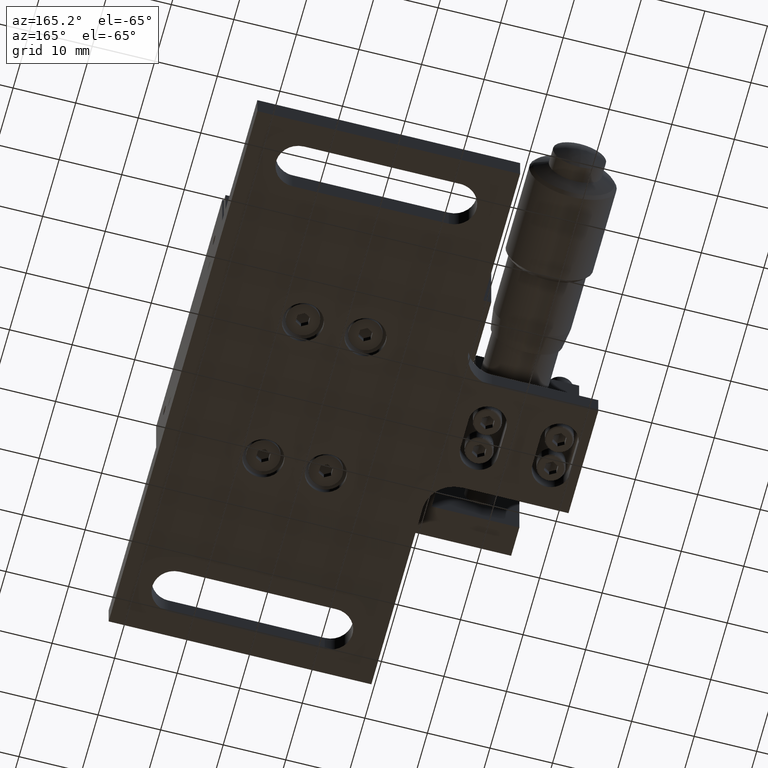
[diagram: clean part render]
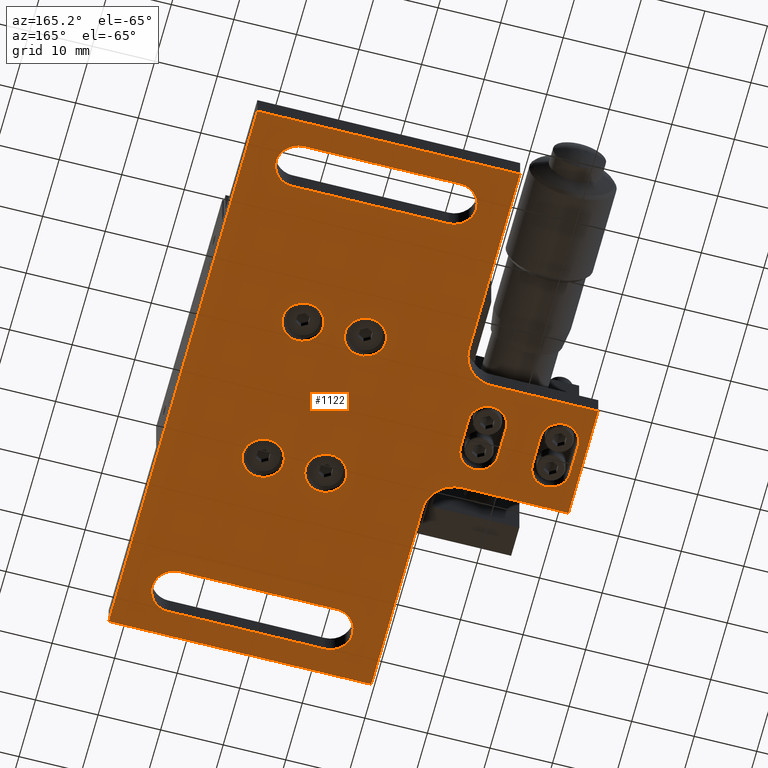
[diagram: same view with one face highlighted and labeled with its STEP entity id]
A machine part, auxiliary view. The second image highlights one B-rep face of the part: STEP entity #1122.
In plain terms, the highlighted face is a freeform B-spline surface patch.
Its self-contained STEP definition (entity closure, byte-faithful):
#82=FACE_BOUND('',#2404,.T.);
#83=FACE_BOUND('',#2405,.T.);
#84=FACE_BOUND('',#2406,.T.);
#85=FACE_BOUND('',#2407,.T.);
#86=FACE_BOUND('',#2408,.T.);
#87=FACE_BOUND('',#2409,.T.);
#88=FACE_BOUND('',#2410,.T.);
#89=FACE_BOUND('',#2411,.T.);
#297=B_SPLINE_SURFACE_WITH_KNOTS('',1,1,((#33071,#33072),(#33073,#33074)),
 .UNSPECIFIED.,.F.,.F.,.F.,(2,2),(2,2),(-0.620000000000002,5.62),(-0.42,
3.42),.UNSPECIFIED.);
#298=B_SPLINE_SURFACE_WITH_KNOTS('',1,1,((#33093,#33094),(#33095,#33096)),
 .UNSPECIFIED.,.F.,.F.,.F.,(2,2),(2,2),(-5.62,0.620000000000002),(-3.42,
0.42),.UNSPECIFIED.);
#300=B_SPLINE_SURFACE_WITH_KNOTS('',1,1,((#33119,#33120),(#33121,#33122)),
 .UNSPECIFIED.,.F.,.F.,.F.,(2,2),(2,2),(-0.620000000000012,5.62000000000011),
(-0.42,3.42),.UNSPECIFIED.);
#301=B_SPLINE_SURFACE_WITH_KNOTS('',1,1,((#33141,#33142),(#33143,#33144)),
 .UNSPECIFIED.,.F.,.F.,.F.,(2,2),(2,2),(-5.62,0.620000000000002),(-3.42,
0.42),.UNSPECIFIED.);
#308=B_SPLINE_SURFACE_WITH_KNOTS('',1,1,((#33313,#33314),(#33315,#33316)),
 .UNSPECIFIED.,.F.,.F.,.F.,(2,2),(2,2),(-27.62,2.62),(-4.52,0.52),
 .UNSPECIFIED.);
#309=B_SPLINE_SURFACE_WITH_KNOTS('',1,1,((#33335,#33336),(#33337,#33338)),
 .UNSPECIFIED.,.F.,.F.,.F.,(2,2),(2,2),(-2.62,27.62),(-0.52,4.52),
 .UNSPECIFIED.);
#310=B_SPLINE_SURFACE_WITH_KNOTS('',1,1,((#33375,#33376),(#33377,#33378)),
 .UNSPECIFIED.,.F.,.F.,.F.,(2,2),(2,2),(-27.6199999999999,2.61999999999999),
(-4.52,0.52),.UNSPECIFIED.);
#311=B_SPLINE_SURFACE_WITH_KNOTS('',1,1,((#33397,#33398),(#33399,#33400)),
 .UNSPECIFIED.,.F.,.F.,.F.,(2,2),(2,2),(-2.61999999999999,27.6199999999999),
(-0.52,4.52),.UNSPECIFIED.);
#312=B_SPLINE_SURFACE_WITH_KNOTS('',1,1,((#33441,#33442),(#33443,#33444)),
 .UNSPECIFIED.,.F.,.F.,.F.,(2,2),(2,2),(-0.52,4.52),(-1.81999999999999,
18.8199999999999),.UNSPECIFIED.);
#313=B_SPLINE_SURFACE_WITH_KNOTS('',1,1,((#33445,#33446),(#33447,#33448)),
 .UNSPECIFIED.,.F.,.F.,.F.,(2,2),(2,2),(-4.52,0.52),(-19.92,1.92),
 .UNSPECIFIED.);
#314=B_SPLINE_SURFACE_WITH_KNOTS('',1,1,((#33449,#33450),(#33451,#33452)),
 .UNSPECIFIED.,.F.,.F.,.F.,(2,2),(2,2),(-4.52,0.52),(-18.8199999999999,
1.81999999999999),.UNSPECIFIED.);
#315=B_SPLINE_SURFACE_WITH_KNOTS('',1,1,((#33471,#33472),(#33473,#33474)),
 .UNSPECIFIED.,.F.,.F.,.F.,(2,2),(2,2),(-4.52,0.52),(-34.22,3.22),
 .UNSPECIFIED.);
#316=B_SPLINE_SURFACE_WITH_KNOTS('',1,1,((#33475,#33476),(#33477,#33478)),
 .UNSPECIFIED.,.F.,.F.,.F.,(2,2),(2,2),(-4.52,0.52),(-46.32,4.32),
 .UNSPECIFIED.);
#317=B_SPLINE_SURFACE_WITH_KNOTS('',1,1,((#33479,#33480),(#33481,#33482)),
 .UNSPECIFIED.,.F.,.F.,.F.,(2,2),(2,2),(-0.52,4.52),(-9.11999999999998,
99.1199999999998),.UNSPECIFIED.);
#318=B_SPLINE_SURFACE_WITH_KNOTS('',1,1,((#33483,#33484),(#33485,#33486)),
 .UNSPECIFIED.,.F.,.F.,.F.,(2,2),(2,2),(-0.52,4.52),(-4.32000000000001,
46.3200000000001),.UNSPECIFIED.);
#319=B_SPLINE_SURFACE_WITH_KNOTS('',1,1,((#33487,#33488),(#33489,#33490)),
 .UNSPECIFIED.,.F.,.F.,.F.,(2,2),(2,2),(-4.52,0.52),(-34.2200000000001,
3.22),.UNSPECIFIED.);
#320=B_SPLINE_SURFACE_WITH_KNOTS('',1,1,((#33509,#33510),(#33511,#33512)),
 .UNSPECIFIED.,.F.,.F.,.F.,(2,2),(2,2),(-54.1200000000001,54.1200000000001),
(-33.1783172531585,43.8616827468419),.UNSPECIFIED.);
#1122=ADVANCED_FACE('',(#1743,#82,#83,#84,#85,#86,#87,#88,#89),#320,.T.);
#1743=FACE_OUTER_BOUND('',#2403,.T.);
#2403=EDGE_LOOP('',(#4520,#4521,#4522,#4523,#4524,#4525,#4526,#4527,#4528,
#4529));
#2404=EDGE_LOOP('',(#4530,#4531,#4532,#4533));
#2405=EDGE_LOOP('',(#4534,#4535,#4536,#4537));
#2406=EDGE_LOOP('',(#4538,#4539,#4540,#4541));
#2407=EDGE_LOOP('',(#4542,#4543,#4544,#4545));
#2408=EDGE_LOOP('',(#4546,#4547));
#2409=EDGE_LOOP('',(#4548,#4549));
#2410=EDGE_LOOP('',(#4550,#4551));
#2411=EDGE_LOOP('',(#4552,#4553));
#4520=ORIENTED_EDGE('',*,*,#18768,.F.);
#4521=ORIENTED_EDGE('',*,*,#18771,.F.);
#4522=ORIENTED_EDGE('',*,*,#18773,.F.);
#4523=ORIENTED_EDGE('',*,*,#18774,.F.);
#4524=ORIENTED_EDGE('',*,*,#18777,.F.);
#4525=ORIENTED_EDGE('',*,*,#18779,.F.);
#4526=ORIENTED_EDGE('',*,*,#18781,.F.);
#4527=ORIENTED_EDGE('',*,*,#18783,.F.);
#4528=ORIENTED_EDGE('',*,*,#18785,.F.);
#4529=ORIENTED_EDGE('',*,*,#18786,.F.);
#4530=ORIENTED_EDGE('',*,*,#18664,.F.);
#4531=ORIENTED_EDGE('',*,*,#18673,.F.);
#4532=ORIENTED_EDGE('',*,*,#18670,.F.);
#4533=ORIENTED_EDGE('',*,*,#18667,.F.);
#4534=ORIENTED_EDGE('',*,*,#18678,.F.);
#4535=ORIENTED_EDGE('',*,*,#18687,.F.);
#4536=ORIENTED_EDGE('',*,*,#18684,.F.);
#4537=ORIENTED_EDGE('',*,*,#18681,.F.);
#4538=ORIENTED_EDGE('',*,*,#18739,.F.);
#4539=ORIENTED_EDGE('',*,*,#18746,.F.);
#4540=ORIENTED_EDGE('',*,*,#18744,.F.);
#4541=ORIENTED_EDGE('',*,*,#18742,.F.);
#4542=ORIENTED_EDGE('',*,*,#18747,.F.);
#4543=ORIENTED_EDGE('',*,*,#18754,.F.);
#4544=ORIENTED_EDGE('',*,*,#18752,.F.);
#4545=ORIENTED_EDGE('',*,*,#18750,.F.);
#4546=ORIENTED_EDGE('',*,*,#18755,.F.);
#4547=ORIENTED_EDGE('',*,*,#18787,.T.);
#4548=ORIENTED_EDGE('',*,*,#18758,.F.);
#4549=ORIENTED_EDGE('',*,*,#18788,.T.);
#4550=ORIENTED_EDGE('',*,*,#18761,.F.);
#4551=ORIENTED_EDGE('',*,*,#18789,.T.);
#4552=ORIENTED_EDGE('',*,*,#18764,.F.);
#4553=ORIENTED_EDGE('',*,*,#18790,.T.);
#7541=PCURVE('',#21972,#10771);
#7545=PCURVE('',#297,#10775);
#7549=PCURVE('',#21973,#10779);
#7553=PCURVE('',#298,#10783);
#7565=PCURVE('',#21974,#10795);
#7569=PCURVE('',#300,#10799);
#7573=PCURVE('',#21975,#10803);
#7577=PCURVE('',#301,#10807);
#7662=PCURVE('',#308,#10892);
#7666=PCURVE('',#21984,#10896);
#7670=PCURVE('',#309,#10900);
#7674=PCURVE('',#21985,#10904);
#7678=PCURVE('',#21986,#10908);
#7682=PCURVE('',#310,#10912);
#7686=PCURVE('',#21987,#10916);
#7690=PCURVE('',#311,#10920);
#7694=PCURVE('',#21988,#10924);
#7698=PCURVE('',#21989,#10928);
#7702=PCURVE('',#21990,#10932);
#7706=PCURVE('',#21991,#10936);
#7711=PCURVE('',#312,#10941);
#7715=PCURVE('',#313,#10945);
#7719=PCURVE('',#314,#10949);
#7722=PCURVE('',#21992,#10952);
#7727=PCURVE('',#315,#10957);
#7731=PCURVE('',#316,#10961);
#7735=PCURVE('',#317,#10965);
#7739=PCURVE('',#318,#10969);
#7743=PCURVE('',#319,#10973);
#7746=PCURVE('',#21993,#10976);
#7750=PCURVE('',#320,#10980);
#7751=PCURVE('',#320,#10981);
#7752=PCURVE('',#320,#10982);
#7753=PCURVE('',#320,#10983);
#7754=PCURVE('',#320,#10984);
#7755=PCURVE('',#320,#10985);
#7756=PCURVE('',#320,#10986);
#7757=PCURVE('',#320,#10987);
#7758=PCURVE('',#320,#10988);
#7759=PCURVE('',#320,#10989);
#7760=PCURVE('',#320,#10990);
#7761=PCURVE('',#320,#10991);
#7762=PCURVE('',#320,#10992);
#7763=PCURVE('',#320,#10993);
#7764=PCURVE('',#320,#10994);
#7765=PCURVE('',#320,#10995);
#7766=PCURVE('',#320,#10996);
#7767=PCURVE('',#320,#10997);
#7768=PCURVE('',#320,#10998);
#7769=PCURVE('',#320,#10999);
#7770=PCURVE('',#320,#11000);
#7771=PCURVE('',#320,#11001);
#7772=PCURVE('',#320,#11002);
#7773=PCURVE('',#320,#11003);
#7774=PCURVE('',#320,#11004);
#7775=PCURVE('',#320,#11005);
#7776=PCURVE('',#320,#11006);
#7777=PCURVE('',#320,#11007);
#7778=PCURVE('',#320,#11008);
#7779=PCURVE('',#320,#11009);
#7780=PCURVE('',#320,#11010);
#7781=PCURVE('',#320,#11011);
#7782=PCURVE('',#320,#11012);
#7783=PCURVE('',#320,#11013);
#9138=PCURVE('',#22114,#12368);
#9142=PCURVE('',#22115,#12372);
#9146=PCURVE('',#22116,#12376);
#9150=PCURVE('',#22117,#12380);
#10771=DEFINITIONAL_REPRESENTATION('',(#14164),#46496);
#10775=DEFINITIONAL_REPRESENTATION('',(#14170),#46496);
#10779=DEFINITIONAL_REPRESENTATION('',(#14176),#46496);
#10783=DEFINITIONAL_REPRESENTATION('',(#14182),#46496);
#10795=DEFINITIONAL_REPRESENTATION('',(#14190),#46496);
#10799=DEFINITIONAL_REPRESENTATION('',(#14196),#46496);
#10803=DEFINITIONAL_REPRESENTATION('',(#14202),#46496);
#10807=DEFINITIONAL_REPRESENTATION('',(#14208),#46496);
#10892=DEFINITIONAL_REPRESENTATION('',(#14311),#46496);
#10896=DEFINITIONAL_REPRESENTATION('',(#14317),#46496);
#10900=DEFINITIONAL_REPRESENTATION('',(#14323),#46496);
#10904=DEFINITIONAL_REPRESENTATION('',(#14328),#46496);
#10908=DEFINITIONAL_REPRESENTATION('',(#14332),#46496);
#10912=DEFINITIONAL_REPRESENTATION('',(#14339),#46496);
#10916=DEFINITIONAL_REPRESENTATION('',(#14344),#46496);
#10920=DEFINITIONAL_REPRESENTATION('',(#14350),#46496);
#10924=DEFINITIONAL_REPRESENTATION('',(#14354),#46496);
#10928=DEFINITIONAL_REPRESENTATION('',(#14360),#46496);
#10932=DEFINITIONAL_REPRESENTATION('',(#14366),#46496);
#10936=DEFINITIONAL_REPRESENTATION('',(#14372),#46496);
#10941=DEFINITIONAL_REPRESENTATION('',(#14381),#46496);
#10945=DEFINITIONAL_REPRESENTATION('',(#14388),#46496);
#10949=DEFINITIONAL_REPRESENTATION('',(#14394),#46496);
#10952=DEFINITIONAL_REPRESENTATION('',(#14397),#46496);
#10957=DEFINITIONAL_REPRESENTATION('',(#14405),#46496);
#10961=DEFINITIONAL_REPRESENTATION('',(#14411),#46496);
#10965=DEFINITIONAL_REPRESENTATION('',(#14417),#46496);
#10969=DEFINITIONAL_REPRESENTATION('',(#14423),#46496);
#10973=DEFINITIONAL_REPRESENTATION('',(#14429),#46496);
#10976=DEFINITIONAL_REPRESENTATION('',(#14432),#46496);
#10980=DEFINITIONAL_REPRESENTATION('',(#14436),#46496);
#10981=DEFINITIONAL_REPRESENTATION('',(#14437),#46496);
#10982=DEFINITIONAL_REPRESENTATION('',(#14438),#46496);
#10983=DEFINITIONAL_REPRESENTATION('',(#20245),#46496);
#10984=DEFINITIONAL_REPRESENTATION('',(#14439),#46496);
#10985=DEFINITIONAL_REPRESENTATION('',(#14440),#46496);
#10986=DEFINITIONAL_REPRESENTATION('',(#14441),#46496);
#10987=DEFINITIONAL_REPRESENTATION('',(#14442),#46496);
#10988=DEFINITIONAL_REPRESENTATION('',(#14443),#46496);
#10989=DEFINITIONAL_REPRESENTATION('',(#20246),#46496);
#10990=DEFINITIONAL_REPRESENTATION('',(#20247),#46496);
#10991=DEFINITIONAL_REPRESENTATION('',(#14444),#46496);
#10992=DEFINITIONAL_REPRESENTATION('',(#20248),#46496);
#10993=DEFINITIONAL_REPRESENTATION('',(#14445),#46496);
#10994=DEFINITIONAL_REPRESENTATION('',(#20249),#46496);
#10995=DEFINITIONAL_REPRESENTATION('',(#14446),#46496);
#10996=DEFINITIONAL_REPRESENTATION('',(#20250),#46496);
#10997=DEFINITIONAL_REPRESENTATION('',(#14447),#46496);
#10998=DEFINITIONAL_REPRESENTATION('',(#14448),#46496);
#10999=DEFINITIONAL_REPRESENTATION('',(#20251),#46496);
#11000=DEFINITIONAL_REPRESENTATION('',(#14449),#46496);
#11001=DEFINITIONAL_REPRESENTATION('',(#20252),#46496);
#11002=DEFINITIONAL_REPRESENTATION('',(#20253),#46496);
#11003=DEFINITIONAL_REPRESENTATION('',(#14450),#46496);
#11004=DEFINITIONAL_REPRESENTATION('',(#20254),#46496);
#11005=DEFINITIONAL_REPRESENTATION('',(#14451),#46496);
#11006=DEFINITIONAL_REPRESENTATION('',(#20255),#46496);
#11007=DEFINITIONAL_REPRESENTATION('',(#20257),#46496);
#11008=DEFINITIONAL_REPRESENTATION('',(#20258),#46496);
#11009=DEFINITIONAL_REPRESENTATION('',(#20260),#46496);
#11010=DEFINITIONAL_REPRESENTATION('',(#20261),#46496);
#11011=DEFINITIONAL_REPRESENTATION('',(#20263),#46496);
#11012=DEFINITIONAL_REPRESENTATION('',(#20264),#46496);
#11013=DEFINITIONAL_REPRESENTATION('',(#20266),#46496);
#12368=DEFINITIONAL_REPRESENTATION('',(#16051),#46496);
#12372=DEFINITIONAL_REPRESENTATION('',(#16055),#46496);
#12376=DEFINITIONAL_REPRESENTATION('',(#16059),#46496);
#12380=DEFINITIONAL_REPRESENTATION('',(#16063),#46496);
#14164=B_SPLINE_CURVE_WITH_KNOTS('',1,(#39862,#39863),.UNSPECIFIED.,.F.,
 .F.,(2,2),(-9.42477796076932,0.),.UNSPECIFIED.);
#14169=B_SPLINE_CURVE_WITH_KNOTS('',1,(#39877,#39878),.UNSPECIFIED.,.F.,
 .F.,(2,2),(-5.,0.),.UNSPECIFIED.);
#14170=B_SPLINE_CURVE_WITH_KNOTS('',1,(#39879,#39880),.UNSPECIFIED.,.F.,
 .F.,(2,2),(-5.,0.),.UNSPECIFIED.);
#14176=B_SPLINE_CURVE_WITH_KNOTS('',1,(#39896,#39897),.UNSPECIFIED.,.F.,
 .F.,(2,2),(-9.42477796076929,0.),.UNSPECIFIED.);
#14181=B_SPLINE_CURVE_WITH_KNOTS('',1,(#39911,#39912),.UNSPECIFIED.,.F.,
 .F.,(2,2),(-5.,0.),.UNSPECIFIED.);
#14182=B_SPLINE_CURVE_WITH_KNOTS('',1,(#39913,#39914),.UNSPECIFIED.,.F.,
 .F.,(2,2),(-5.,0.),.UNSPECIFIED.);
#14190=B_SPLINE_CURVE_WITH_KNOTS('',1,(#39974,#39975),.UNSPECIFIED.,.F.,
 .F.,(2,2),(-9.42477796076932,0.),.UNSPECIFIED.);
#14195=B_SPLINE_CURVE_WITH_KNOTS('',1,(#39989,#39990),.UNSPECIFIED.,.F.,
 .F.,(2,2),(-5.0000000000001,0.),.UNSPECIFIED.);
#14196=B_SPLINE_CURVE_WITH_KNOTS('',1,(#39991,#39992),.UNSPECIFIED.,.F.,
 .F.,(2,2),(-5.0000000000001,0.),.UNSPECIFIED.);
#14202=B_SPLINE_CURVE_WITH_KNOTS('',1,(#40008,#40009),.UNSPECIFIED.,.F.,
 .F.,(2,2),(-9.42477796076929,0.),.UNSPECIFIED.);
#14207=B_SPLINE_CURVE_WITH_KNOTS('',1,(#40023,#40024),.UNSPECIFIED.,.F.,
 .F.,(2,2),(-5.,0.),.UNSPECIFIED.);
#14208=B_SPLINE_CURVE_WITH_KNOTS('',1,(#40025,#40026),.UNSPECIFIED.,.F.,
 .F.,(2,2),(-5.,0.),.UNSPECIFIED.);
#14310=B_SPLINE_CURVE_WITH_KNOTS('',1,(#40391,#40392),.UNSPECIFIED.,.F.,
 .F.,(2,2),(-25.,0.),.UNSPECIFIED.);
#14311=B_SPLINE_CURVE_WITH_KNOTS('',1,(#40393,#40394),.UNSPECIFIED.,.F.,
 .F.,(2,2),(-25.,0.),.UNSPECIFIED.);
#14317=B_SPLINE_CURVE_WITH_KNOTS('',1,(#40410,#40411),.UNSPECIFIED.,.F.,
 .F.,(2,2),(-10.9955742875643,0.),.UNSPECIFIED.);
#14322=B_SPLINE_CURVE_WITH_KNOTS('',1,(#40420,#40421),.UNSPECIFIED.,.F.,
 .F.,(2,2),(-25.,0.),.UNSPECIFIED.);
#14323=B_SPLINE_CURVE_WITH_KNOTS('',1,(#40422,#40423),.UNSPECIFIED.,.F.,
 .F.,(2,2),(-25.,0.),.UNSPECIFIED.);
#14328=B_SPLINE_CURVE_WITH_KNOTS('',1,(#40437,#40438),.UNSPECIFIED.,.F.,
 .F.,(2,2),(-10.9955742875643,0.),.UNSPECIFIED.);
#14332=B_SPLINE_CURVE_WITH_KNOTS('',1,(#40450,#40451),.UNSPECIFIED.,.F.,
 .F.,(2,2),(-10.9955742875643,0.),.UNSPECIFIED.);
#14338=B_SPLINE_CURVE_WITH_KNOTS('',1,(#40462,#40463),.UNSPECIFIED.,.F.,
 .F.,(2,2),(-24.9999999999999,0.),.UNSPECIFIED.);
#14339=B_SPLINE_CURVE_WITH_KNOTS('',1,(#40464,#40465),.UNSPECIFIED.,.F.,
 .F.,(2,2),(-24.9999999999999,0.),.UNSPECIFIED.);
#14344=B_SPLINE_CURVE_WITH_KNOTS('',1,(#40479,#40480),.UNSPECIFIED.,.F.,
 .F.,(2,2),(-10.9955742875643,0.),.UNSPECIFIED.);
#14349=B_SPLINE_CURVE_WITH_KNOTS('',1,(#40489,#40490),.UNSPECIFIED.,.F.,
 .F.,(2,2),(-24.9999999999999,0.),.UNSPECIFIED.);
#14350=B_SPLINE_CURVE_WITH_KNOTS('',1,(#40491,#40492),.UNSPECIFIED.,.F.,
 .F.,(2,2),(-24.9999999999999,0.),.UNSPECIFIED.);
#14354=B_SPLINE_CURVE_WITH_KNOTS('',1,(#40504,#40505),.UNSPECIFIED.,.F.,
 .F.,(2,2),(-10.2101761241668,0.),.UNSPECIFIED.);
#14360=B_SPLINE_CURVE_WITH_KNOTS('',1,(#40521,#40522),.UNSPECIFIED.,.F.,
 .F.,(2,2),(-10.2101761241668,0.),.UNSPECIFIED.);
#14366=B_SPLINE_CURVE_WITH_KNOTS('',1,(#40538,#40539),.UNSPECIFIED.,.F.,
 .F.,(2,2),(-10.2101761241668,0.),.UNSPECIFIED.);
#14372=B_SPLINE_CURVE_WITH_KNOTS('',1,(#40555,#40556),.UNSPECIFIED.,.F.,
 .F.,(2,2),(-10.2101761241668,0.),.UNSPECIFIED.);
#14380=B_SPLINE_CURVE_WITH_KNOTS('',1,(#40571,#40572),.UNSPECIFIED.,.F.,
 .F.,(2,2),(-16.9999999999999,0.),.UNSPECIFIED.);
#14381=B_SPLINE_CURVE_WITH_KNOTS('',1,(#40573,#40574),.UNSPECIFIED.,.F.,
 .F.,(2,2),(-16.9999999999999,0.),.UNSPECIFIED.);
#14387=B_SPLINE_CURVE_WITH_KNOTS('',1,(#40585,#40586),.UNSPECIFIED.,.F.,
 .F.,(2,2),(-18.,0.),.UNSPECIFIED.);
#14388=B_SPLINE_CURVE_WITH_KNOTS('',1,(#40587,#40588),.UNSPECIFIED.,.F.,
 .F.,(2,2),(-18.,0.),.UNSPECIFIED.);
#14393=B_SPLINE_CURVE_WITH_KNOTS('',1,(#40597,#40598),.UNSPECIFIED.,.F.,
 .F.,(2,2),(-16.9999999999999,0.),.UNSPECIFIED.);
#14394=B_SPLINE_CURVE_WITH_KNOTS('',1,(#40599,#40600),.UNSPECIFIED.,.F.,
 .F.,(2,2),(-16.9999999999999,0.),.UNSPECIFIED.);
#14397=B_SPLINE_CURVE_WITH_KNOTS('',1,(#40608,#40609),.UNSPECIFIED.,.F.,
 .F.,(2,2),(-7.85398163397439,0.),.UNSPECIFIED.);
#14404=B_SPLINE_CURVE_WITH_KNOTS('',1,(#40622,#40623),.UNSPECIFIED.,.F.,
 .F.,(2,2),(-31.,0.),.UNSPECIFIED.);
#14405=B_SPLINE_CURVE_WITH_KNOTS('',1,(#40624,#40625),.UNSPECIFIED.,.F.,
 .F.,(2,2),(-31.,0.),.UNSPECIFIED.);
#14410=B_SPLINE_CURVE_WITH_KNOTS('',1,(#40634,#40635),.UNSPECIFIED.,.F.,
 .F.,(2,2),(-42.,0.),.UNSPECIFIED.);
#14411=B_SPLINE_CURVE_WITH_KNOTS('',1,(#40636,#40637),.UNSPECIFIED.,.F.,
 .F.,(2,2),(-42.,0.),.UNSPECIFIED.);
#14416=B_SPLINE_CURVE_WITH_KNOTS('',1,(#40646,#40647),.UNSPECIFIED.,.F.,
 .F.,(2,2),(-89.9999999999998,0.),.UNSPECIFIED.);
#14417=B_SPLINE_CURVE_WITH_KNOTS('',1,(#40648,#40649),.UNSPECIFIED.,.F.,
 .F.,(2,2),(-89.9999999999998,0.),.UNSPECIFIED.);
#14422=B_SPLINE_CURVE_WITH_KNOTS('',1,(#40658,#40659),.UNSPECIFIED.,.F.,
 .F.,(2,2),(-42.0000000000001,0.),.UNSPECIFIED.);
#14423=B_SPLINE_CURVE_WITH_KNOTS('',1,(#40660,#40661),.UNSPECIFIED.,.F.,
 .F.,(2,2),(-42.0000000000001,0.),.UNSPECIFIED.);
#14428=B_SPLINE_CURVE_WITH_KNOTS('',1,(#40670,#40671),.UNSPECIFIED.,.F.,
 .F.,(2,2),(-31.0000000000001,0.),.UNSPECIFIED.);
#14429=B_SPLINE_CURVE_WITH_KNOTS('',1,(#40672,#40673),.UNSPECIFIED.,.F.,
 .F.,(2,2),(-31.0000000000001,0.),.UNSPECIFIED.);
#14432=B_SPLINE_CURVE_WITH_KNOTS('',1,(#40681,#40682),.UNSPECIFIED.,.F.,
 .F.,(2,2),(-7.85398163397448,0.),.UNSPECIFIED.);
#14436=B_SPLINE_CURVE_WITH_KNOTS('',1,(#40689,#40690),.UNSPECIFIED.,.F.,
 .F.,(2,2),(-16.9999999999999,0.),.UNSPECIFIED.);
#14437=B_SPLINE_CURVE_WITH_KNOTS('',1,(#40691,#40692),.UNSPECIFIED.,.F.,
 .F.,(2,2),(-18.,0.),.UNSPECIFIED.);
#14438=B_SPLINE_CURVE_WITH_KNOTS('',1,(#40693,#40694),.UNSPECIFIED.,.F.,
 .F.,(2,2),(-16.9999999999999,0.),.UNSPECIFIED.);
#14439=B_SPLINE_CURVE_WITH_KNOTS('',1,(#40698,#40699),.UNSPECIFIED.,.F.,
 .F.,(2,2),(-31.,0.),.UNSPECIFIED.);
#14440=B_SPLINE_CURVE_WITH_KNOTS('',1,(#40700,#40701),.UNSPECIFIED.,.F.,
 .F.,(2,2),(-42.,0.),.UNSPECIFIED.);
#14441=B_SPLINE_CURVE_WITH_KNOTS('',1,(#40702,#40703),.UNSPECIFIED.,.F.,
 .F.,(2,2),(-89.9999999999998,0.),.UNSPECIFIED.);
#14442=B_SPLINE_CURVE_WITH_KNOTS('',1,(#40704,#40705),.UNSPECIFIED.,.F.,
 .F.,(2,2),(-42.0000000000001,0.),.UNSPECIFIED.);
#14443=B_SPLINE_CURVE_WITH_KNOTS('',1,(#40706,#40707),.UNSPECIFIED.,.F.,
 .F.,(2,2),(-31.0000000000001,0.),.UNSPECIFIED.);
#14444=B_SPLINE_CURVE_WITH_KNOTS('',1,(#40716,#40717),.UNSPECIFIED.,.F.,
 .F.,(2,2),(-5.,0.),.UNSPECIFIED.);
#14445=B_SPLINE_CURVE_WITH_KNOTS('',1,(#40723,#40724),.UNSPECIFIED.,.F.,
 .F.,(2,2),(-5.,0.),.UNSPECIFIED.);
#14446=B_SPLINE_CURVE_WITH_KNOTS('',1,(#40730,#40731),.UNSPECIFIED.,.F.,
 .F.,(2,2),(-5.,0.),.UNSPECIFIED.);
#14447=B_SPLINE_CURVE_WITH_KNOTS('',1,(#40737,#40738),.UNSPECIFIED.,.F.,
 .F.,(2,2),(-5.0000000000001,0.),.UNSPECIFIED.);
#14448=B_SPLINE_CURVE_WITH_KNOTS('',1,(#40739,#40740),.UNSPECIFIED.,.F.,
 .F.,(2,2),(-25.,0.),.UNSPECIFIED.);
#14449=B_SPLINE_CURVE_WITH_KNOTS('',1,(#40746,#40747),.UNSPECIFIED.,.F.,
 .F.,(2,2),(-25.,0.),.UNSPECIFIED.);
#14450=B_SPLINE_CURVE_WITH_KNOTS('',1,(#40758,#40759),.UNSPECIFIED.,.F.,
 .F.,(2,2),(-24.9999999999999,0.),.UNSPECIFIED.);
#14451=B_SPLINE_CURVE_WITH_KNOTS('',1,(#40765,#40766),.UNSPECIFIED.,.F.,
 .F.,(2,2),(-24.9999999999999,0.),.UNSPECIFIED.);
#16051=B_SPLINE_CURVE_WITH_KNOTS('',1,(#46366,#46367),.UNSPECIFIED.,.F.,
 .F.,(2,2),(10.2101761241668,20.4203522483337),.UNSPECIFIED.);
#16055=B_SPLINE_CURVE_WITH_KNOTS('',1,(#46374,#46375),.UNSPECIFIED.,.F.,
 .F.,(2,2),(10.2101761241668,20.4203522483337),.UNSPECIFIED.);
#16059=B_SPLINE_CURVE_WITH_KNOTS('',1,(#46382,#46383),.UNSPECIFIED.,.F.,
 .F.,(2,2),(10.2101761241668,20.4203522483337),.UNSPECIFIED.);
#16063=B_SPLINE_CURVE_WITH_KNOTS('',1,(#46390,#46391),.UNSPECIFIED.,.F.,
 .F.,(2,2),(10.2101761241668,20.4203522483337),.UNSPECIFIED.);
#16980=SURFACE_CURVE('',#20185,(#7541,#7760),.PCURVE_S1.);
#16983=SURFACE_CURVE('',#14169,(#7545,#7763),.PCURVE_S1.);
#16986=SURFACE_CURVE('',#20187,(#7549,#7762),.PCURVE_S1.);
#16989=SURFACE_CURVE('',#14181,(#7553,#7761),.PCURVE_S1.);
#16994=SURFACE_CURVE('',#20197,(#7565,#7764),.PCURVE_S1.);
#16997=SURFACE_CURVE('',#14195,(#7569,#7767),.PCURVE_S1.);
#17000=SURFACE_CURVE('',#20199,(#7573,#7766),.PCURVE_S1.);
#17003=SURFACE_CURVE('',#14207,(#7577,#7765),.PCURVE_S1.);
#17055=SURFACE_CURVE('',#14310,(#7662,#7768),.PCURVE_S1.);
#17058=SURFACE_CURVE('',#20235,(#7666,#7771),.PCURVE_S1.);
#17060=SURFACE_CURVE('',#14322,(#7670,#7770),.PCURVE_S1.);
#17062=SURFACE_CURVE('',#20236,(#7674,#7769),.PCURVE_S1.);
#17063=SURFACE_CURVE('',#20237,(#7678,#7772),.PCURVE_S1.);
#17066=SURFACE_CURVE('',#14338,(#7682,#7775),.PCURVE_S1.);
#17068=SURFACE_CURVE('',#20238,(#7686,#7774),.PCURVE_S1.);
#17070=SURFACE_CURVE('',#14349,(#7690,#7773),.PCURVE_S1.);
#17071=SURFACE_CURVE('',#20239,(#7694,#7776),.PCURVE_S1.);
#17074=SURFACE_CURVE('',#20240,(#7698,#7778),.PCURVE_S1.);
#17077=SURFACE_CURVE('',#20241,(#7702,#7780),.PCURVE_S1.);
#17080=SURFACE_CURVE('',#20242,(#7706,#7782),.PCURVE_S1.);
#17084=SURFACE_CURVE('',#14380,(#7711,#7750),.PCURVE_S1.);
#17087=SURFACE_CURVE('',#14387,(#7715,#7751),.PCURVE_S1.);
#17089=SURFACE_CURVE('',#14393,(#7719,#7752),.PCURVE_S1.);
#17090=SURFACE_CURVE('',#20243,(#7722,#7753),.PCURVE_S1.);
#17093=SURFACE_CURVE('',#14404,(#7727,#7754),.PCURVE_S1.);
#17095=SURFACE_CURVE('',#14410,(#7731,#7755),.PCURVE_S1.);
#17097=SURFACE_CURVE('',#14416,(#7735,#7756),.PCURVE_S1.);
#17099=SURFACE_CURVE('',#14422,(#7739,#7757),.PCURVE_S1.);
#17101=SURFACE_CURVE('',#14428,(#7743,#7758),.PCURVE_S1.);
#17102=SURFACE_CURVE('',#20244,(#7746,#7759),.PCURVE_S1.);
#17103=SURFACE_CURVE('',#20256,(#7777,#9138),.PCURVE_S1.);
#17104=SURFACE_CURVE('',#20259,(#7779,#9142),.PCURVE_S1.);
#17105=SURFACE_CURVE('',#20262,(#7781,#9146),.PCURVE_S1.);
#17106=SURFACE_CURVE('',#20265,(#7783,#9150),.PCURVE_S1.);
#18664=EDGE_CURVE('',#21313,#21314,#16980,.T.);
#18667=EDGE_CURVE('',#21314,#21316,#16983,.T.);
#18670=EDGE_CURVE('',#21316,#21318,#16986,.T.);
#18673=EDGE_CURVE('',#21318,#21313,#16989,.T.);
#18678=EDGE_CURVE('',#21323,#21324,#16994,.T.);
#18681=EDGE_CURVE('',#21324,#21326,#16997,.T.);
#18684=EDGE_CURVE('',#21326,#21328,#17000,.T.);
#18687=EDGE_CURVE('',#21328,#21323,#17003,.T.);
#18739=EDGE_CURVE('',#21365,#21366,#17055,.T.);
#18742=EDGE_CURVE('',#21366,#21367,#17058,.T.);
#18744=EDGE_CURVE('',#21367,#21368,#17060,.T.);
#18746=EDGE_CURVE('',#21368,#21365,#17062,.T.);
#18747=EDGE_CURVE('',#21369,#21370,#17063,.T.);
#18750=EDGE_CURVE('',#21370,#21371,#17066,.T.);
#18752=EDGE_CURVE('',#21371,#21372,#17068,.T.);
#18754=EDGE_CURVE('',#21372,#21369,#17070,.T.);
#18755=EDGE_CURVE('',#21373,#21374,#17071,.T.);
#18758=EDGE_CURVE('',#21375,#21376,#17074,.T.);
#18761=EDGE_CURVE('',#21377,#21378,#17077,.T.);
#18764=EDGE_CURVE('',#21379,#21380,#17080,.T.);
#18768=EDGE_CURVE('',#21381,#21382,#17084,.T.);
#18771=EDGE_CURVE('',#21383,#21381,#17087,.T.);
#18773=EDGE_CURVE('',#21384,#21383,#17089,.T.);
#18774=EDGE_CURVE('',#21385,#21384,#17090,.T.);
#18777=EDGE_CURVE('',#21386,#21385,#17093,.T.);
#18779=EDGE_CURVE('',#21387,#21386,#17095,.T.);
#18781=EDGE_CURVE('',#21388,#21387,#17097,.T.);
#18783=EDGE_CURVE('',#21389,#21388,#17099,.T.);
#18785=EDGE_CURVE('',#21390,#21389,#17101,.T.);
#18786=EDGE_CURVE('',#21382,#21390,#17102,.T.);
#18787=EDGE_CURVE('',#21373,#21374,#17103,.T.);
#18788=EDGE_CURVE('',#21375,#21376,#17104,.T.);
#18789=EDGE_CURVE('',#21377,#21378,#17105,.T.);
#18790=EDGE_CURVE('',#21379,#21380,#17106,.T.);
#20185=(
BOUNDED_CURVE()
B_SPLINE_CURVE(2,(#39857,#39858,#39859,#39860,#39861),.UNSPECIFIED.,.F.,
 .F.)
B_SPLINE_CURVE_WITH_KNOTS((3,2,3),(-9.42477796076932,-4.71238898038466,
0.),.UNSPECIFIED.)
CURVE()
GEOMETRIC_REPRESENTATION_ITEM()
RATIONAL_B_SPLINE_CURVE((1.,0.707106781186548,1.,0.707106781186548,1.))
REPRESENTATION_ITEM('')
);
#20187=(
BOUNDED_CURVE()
B_SPLINE_CURVE(2,(#39891,#39892,#39893,#39894,#39895),.UNSPECIFIED.,.F.,
 .F.)
B_SPLINE_CURVE_WITH_KNOTS((3,2,3),(-9.42477796076929,-4.71238898038464,
0.),.UNSPECIFIED.)
CURVE()
GEOMETRIC_REPRESENTATION_ITEM()
RATIONAL_B_SPLINE_CURVE((1.,0.707106781186542,1.,0.707106781186542,1.))
REPRESENTATION_ITEM('')
);
#20197=(
BOUNDED_CURVE()
B_SPLINE_CURVE(2,(#39969,#39970,#39971,#39972,#39973),.UNSPECIFIED.,.F.,
 .F.)
B_SPLINE_CURVE_WITH_KNOTS((3,2,3),(-9.42477796076932,-4.71238898038466,
0.),.UNSPECIFIED.)
CURVE()
GEOMETRIC_REPRESENTATION_ITEM()
RATIONAL_B_SPLINE_CURVE((1.,0.707106781186545,1.,0.707106781186545,1.))
REPRESENTATION_ITEM('')
);
#20199=(
BOUNDED_CURVE()
B_SPLINE_CURVE(2,(#40003,#40004,#40005,#40006,#40007),.UNSPECIFIED.,.F.,
 .F.)
B_SPLINE_CURVE_WITH_KNOTS((3,2,3),(-9.42477796076929,-4.71238898038464,
0.),.UNSPECIFIED.)
CURVE()
GEOMETRIC_REPRESENTATION_ITEM()
RATIONAL_B_SPLINE_CURVE((1.,0.707106781186548,1.,0.707106781186548,1.))
REPRESENTATION_ITEM('')
);
#20235=(
BOUNDED_CURVE()
B_SPLINE_CURVE(2,(#40405,#40406,#40407,#40408,#40409),.UNSPECIFIED.,.F.,
 .F.)
B_SPLINE_CURVE_WITH_KNOTS((3,2,3),(-10.9955742875643,-5.49778714378214,
0.),.UNSPECIFIED.)
CURVE()
GEOMETRIC_REPRESENTATION_ITEM()
RATIONAL_B_SPLINE_CURVE((1.,0.707106781186548,1.,0.707106781186548,1.))
REPRESENTATION_ITEM('')
);
#20236=(
BOUNDED_CURVE()
B_SPLINE_CURVE(2,(#40432,#40433,#40434,#40435,#40436),.UNSPECIFIED.,.F.,
 .F.)
B_SPLINE_CURVE_WITH_KNOTS((3,2,3),(-10.9955742875643,-5.49778714378214,
0.),.UNSPECIFIED.)
CURVE()
GEOMETRIC_REPRESENTATION_ITEM()
RATIONAL_B_SPLINE_CURVE((1.,0.707106781186548,1.,0.707106781186548,1.))
REPRESENTATION_ITEM('')
);
#20237=(
BOUNDED_CURVE()
B_SPLINE_CURVE(2,(#40445,#40446,#40447,#40448,#40449),.UNSPECIFIED.,.F.,
 .F.)
B_SPLINE_CURVE_WITH_KNOTS((3,2,3),(-10.9955742875643,-5.49778714378214,
0.),.UNSPECIFIED.)
CURVE()
GEOMETRIC_REPRESENTATION_ITEM()
RATIONAL_B_SPLINE_CURVE((1.,0.707106781186542,1.,0.707106781186542,1.))
REPRESENTATION_ITEM('')
);
#20238=(
BOUNDED_CURVE()
B_SPLINE_CURVE(2,(#40474,#40475,#40476,#40477,#40478),.UNSPECIFIED.,.F.,
 .F.)
B_SPLINE_CURVE_WITH_KNOTS((3,2,3),(-10.9955742875643,-5.49778714378214,
0.),.UNSPECIFIED.)
CURVE()
GEOMETRIC_REPRESENTATION_ITEM()
RATIONAL_B_SPLINE_CURVE((1.,0.707106781186548,1.,0.707106781186548,1.))
REPRESENTATION_ITEM('')
);
#20239=(
BOUNDED_CURVE()
B_SPLINE_CURVE(2,(#40499,#40500,#40501,#40502,#40503),.UNSPECIFIED.,.F.,
 .F.)
B_SPLINE_CURVE_WITH_KNOTS((3,2,3),(-10.2101761241668,-5.10508806208341,
0.),.UNSPECIFIED.)
CURVE()
GEOMETRIC_REPRESENTATION_ITEM()
RATIONAL_B_SPLINE_CURVE((1.,0.707106781186547,1.,0.707106781186547,1.))
REPRESENTATION_ITEM('')
);
#20240=(
BOUNDED_CURVE()
B_SPLINE_CURVE(2,(#40516,#40517,#40518,#40519,#40520),.UNSPECIFIED.,.F.,
 .F.)
B_SPLINE_CURVE_WITH_KNOTS((3,2,3),(-10.2101761241668,-5.10508806208341,
0.),.UNSPECIFIED.)
CURVE()
GEOMETRIC_REPRESENTATION_ITEM()
RATIONAL_B_SPLINE_CURVE((1.,0.707106781186547,1.,0.707106781186547,1.))
REPRESENTATION_ITEM('')
);
#20241=(
BOUNDED_CURVE()
B_SPLINE_CURVE(2,(#40533,#40534,#40535,#40536,#40537),.UNSPECIFIED.,.F.,
 .F.)
B_SPLINE_CURVE_WITH_KNOTS((3,2,3),(-10.2101761241668,-5.10508806208341,
0.),.UNSPECIFIED.)
CURVE()
GEOMETRIC_REPRESENTATION_ITEM()
RATIONAL_B_SPLINE_CURVE((1.,0.707106781186548,1.,0.707106781186548,1.))
REPRESENTATION_ITEM('')
);
#20242=(
BOUNDED_CURVE()
B_SPLINE_CURVE(2,(#40550,#40551,#40552,#40553,#40554),.UNSPECIFIED.,.F.,
 .F.)
B_SPLINE_CURVE_WITH_KNOTS((3,2,3),(-10.2101761241668,-5.10508806208341,
0.),.UNSPECIFIED.)
CURVE()
GEOMETRIC_REPRESENTATION_ITEM()
RATIONAL_B_SPLINE_CURVE((1.,0.707106781186548,1.,0.707106781186548,1.))
REPRESENTATION_ITEM('')
);
#20243=(
BOUNDED_CURVE()
B_SPLINE_CURVE(2,(#40605,#40606,#40607),.UNSPECIFIED.,.F.,.F.)
B_SPLINE_CURVE_WITH_KNOTS((3,3),(-7.85398163397439,0.),.UNSPECIFIED.)
CURVE()
GEOMETRIC_REPRESENTATION_ITEM()
RATIONAL_B_SPLINE_CURVE((1.,0.707106781186553,1.))
REPRESENTATION_ITEM('')
);
#20244=(
BOUNDED_CURVE()
B_SPLINE_CURVE(2,(#40678,#40679,#40680),.UNSPECIFIED.,.F.,.F.)
B_SPLINE_CURVE_WITH_KNOTS((3,3),(-7.85398163397448,0.),.UNSPECIFIED.)
CURVE()
GEOMETRIC_REPRESENTATION_ITEM()
RATIONAL_B_SPLINE_CURVE((1.,0.707106781186549,1.))
REPRESENTATION_ITEM('')
);
#20245=(
BOUNDED_CURVE()
B_SPLINE_CURVE(2,(#40695,#40696,#40697),.UNSPECIFIED.,.F.,.F.)
B_SPLINE_CURVE_WITH_KNOTS((3,3),(-7.85398163397439,0.),.UNSPECIFIED.)
CURVE()
GEOMETRIC_REPRESENTATION_ITEM()
RATIONAL_B_SPLINE_CURVE((1.,0.707106900395842,1.))
REPRESENTATION_ITEM('')
);
#20246=(
BOUNDED_CURVE()
B_SPLINE_CURVE(2,(#40708,#40709,#40710),.UNSPECIFIED.,.F.,.F.)
B_SPLINE_CURVE_WITH_KNOTS((3,3),(-7.85398163397448,0.),.UNSPECIFIED.)
CURVE()
GEOMETRIC_REPRESENTATION_ITEM()
RATIONAL_B_SPLINE_CURVE((1.,0.707106900395835,1.))
REPRESENTATION_ITEM('')
);
#20247=(
BOUNDED_CURVE()
B_SPLINE_CURVE(2,(#40711,#40712,#40713,#40714,#40715),.UNSPECIFIED.,.F.,
 .F.)
B_SPLINE_CURVE_WITH_KNOTS((3,2,3),(-9.42477796076932,-4.71238841862405,
0.),.UNSPECIFIED.)
CURVE()
GEOMETRIC_REPRESENTATION_ITEM()
RATIONAL_B_SPLINE_CURVE((1.,0.707106781186548,1.,0.707106900395835,1.))
REPRESENTATION_ITEM('')
);
#20248=(
BOUNDED_CURVE()
B_SPLINE_CURVE(2,(#40718,#40719,#40720,#40721,#40722),.UNSPECIFIED.,.F.,
 .F.)
B_SPLINE_CURVE_WITH_KNOTS((3,2,3),(-9.42477796076929,-4.71238841862403,
0.),.UNSPECIFIED.)
CURVE()
GEOMETRIC_REPRESENTATION_ITEM()
RATIONAL_B_SPLINE_CURVE((1.,0.707106781186548,1.,0.707106900395835,1.))
REPRESENTATION_ITEM('')
);
#20249=(
BOUNDED_CURVE()
B_SPLINE_CURVE(2,(#40725,#40726,#40727,#40728,#40729),.UNSPECIFIED.,.F.,
 .F.)
B_SPLINE_CURVE_WITH_KNOTS((3,2,3),(-9.42477796076932,-4.71238841862405,
0.),.UNSPECIFIED.)
CURVE()
GEOMETRIC_REPRESENTATION_ITEM()
RATIONAL_B_SPLINE_CURVE((1.,0.707106781186548,1.,0.707106900395835,1.))
REPRESENTATION_ITEM('')
);
#20250=(
BOUNDED_CURVE()
B_SPLINE_CURVE(2,(#40732,#40733,#40734,#40735,#40736),.UNSPECIFIED.,.F.,
 .F.)
B_SPLINE_CURVE_WITH_KNOTS((3,2,3),(-9.42477796076929,-4.71238785686342,
0.),.UNSPECIFIED.)
CURVE()
GEOMETRIC_REPRESENTATION_ITEM()
RATIONAL_B_SPLINE_CURVE((1.,0.707106781186548,1.,0.707107019605091,1.))
REPRESENTATION_ITEM('')
);
#20251=(
BOUNDED_CURVE()
B_SPLINE_CURVE(2,(#40741,#40742,#40743,#40744,#40745),.UNSPECIFIED.,.F.,
 .F.)
B_SPLINE_CURVE_WITH_KNOTS((3,2,3),(-10.9955742875643,-5.49778714378214,
0.),.UNSPECIFIED.)
CURVE()
GEOMETRIC_REPRESENTATION_ITEM()
RATIONAL_B_SPLINE_CURVE((1.,0.707106781186548,1.,0.707106781186548,1.))
REPRESENTATION_ITEM('')
);
#20252=(
BOUNDED_CURVE()
B_SPLINE_CURVE(2,(#40748,#40749,#40750,#40751,#40752),.UNSPECIFIED.,.F.,
 .F.)
B_SPLINE_CURVE_WITH_KNOTS((3,2,3),(-10.9955742875643,-5.49778714378214,
0.),.UNSPECIFIED.)
CURVE()
GEOMETRIC_REPRESENTATION_ITEM()
RATIONAL_B_SPLINE_CURVE((1.,0.707106781186548,1.,0.707106781186548,1.))
REPRESENTATION_ITEM('')
);
#20253=(
BOUNDED_CURVE()
B_SPLINE_CURVE(2,(#40753,#40754,#40755,#40756,#40757),.UNSPECIFIED.,.F.,
 .F.)
B_SPLINE_CURVE_WITH_KNOTS((3,2,3),(-10.9955742875643,-5.49778714378214,
0.),.UNSPECIFIED.)
CURVE()
GEOMETRIC_REPRESENTATION_ITEM()
RATIONAL_B_SPLINE_CURVE((1.,0.707106781186548,1.,0.707106781186548,1.))
REPRESENTATION_ITEM('')
);
#20254=(
BOUNDED_CURVE()
B_SPLINE_CURVE(2,(#40760,#40761,#40762,#40763,#40764),.UNSPECIFIED.,.F.,
 .F.)
B_SPLINE_CURVE_WITH_KNOTS((3,2,3),(-10.9955742875643,-5.49778714378214,
0.),.UNSPECIFIED.)
CURVE()
GEOMETRIC_REPRESENTATION_ITEM()
RATIONAL_B_SPLINE_CURVE((1.,0.707106781186548,1.,0.707106781186548,1.))
REPRESENTATION_ITEM('')
);
#20255=(
BOUNDED_CURVE()
B_SPLINE_CURVE(2,(#40767,#40768,#40769,#40770,#40771),.UNSPECIFIED.,.F.,
 .F.)
B_SPLINE_CURVE_WITH_KNOTS((3,2,3),(-10.2101761241668,-5.10508806208341,
0.),.UNSPECIFIED.)
CURVE()
GEOMETRIC_REPRESENTATION_ITEM()
RATIONAL_B_SPLINE_CURVE((1.,0.707106781186548,1.,0.707106781186548,1.))
REPRESENTATION_ITEM('')
);
#20256=(
BOUNDED_CURVE()
B_SPLINE_CURVE(2,(#40772,#40773,#40774,#40775,#40776),.UNSPECIFIED.,.F.,
 .F.)
B_SPLINE_CURVE_WITH_KNOTS((3,2,3),(10.2101761241668,15.3152641862502,20.4203522483337),
 .UNSPECIFIED.)
CURVE()
GEOMETRIC_REPRESENTATION_ITEM()
RATIONAL_B_SPLINE_CURVE((1.,0.707106781186548,1.,0.707106781186548,1.))
REPRESENTATION_ITEM('')
);
#20257=(
BOUNDED_CURVE()
B_SPLINE_CURVE(2,(#40777,#40778,#40779,#40780,#40781),.UNSPECIFIED.,.F.,
 .F.)
B_SPLINE_CURVE_WITH_KNOTS((3,2,3),(10.2101761241668,15.3152641862502,20.4203522483337),
 .UNSPECIFIED.)
CURVE()
GEOMETRIC_REPRESENTATION_ITEM()
RATIONAL_B_SPLINE_CURVE((1.,0.707106781186548,1.,0.707106781186548,1.))
REPRESENTATION_ITEM('')
);
#20258=(
BOUNDED_CURVE()
B_SPLINE_CURVE(2,(#40782,#40783,#40784,#40785,#40786),.UNSPECIFIED.,.F.,
 .F.)
B_SPLINE_CURVE_WITH_KNOTS((3,2,3),(-10.2101761241668,-5.10508806208341,
0.),.UNSPECIFIED.)
CURVE()
GEOMETRIC_REPRESENTATION_ITEM()
RATIONAL_B_SPLINE_CURVE((1.,0.707106781186548,1.,0.707106781186548,1.))
REPRESENTATION_ITEM('')
);
#20259=(
BOUNDED_CURVE()
B_SPLINE_CURVE(2,(#40787,#40788,#40789,#40790,#40791),.UNSPECIFIED.,.F.,
 .F.)
B_SPLINE_CURVE_WITH_KNOTS((3,2,3),(10.2101761241668,15.3152641862502,20.4203522483337),
 .UNSPECIFIED.)
CURVE()
GEOMETRIC_REPRESENTATION_ITEM()
RATIONAL_B_SPLINE_CURVE((1.,0.707106781186548,1.,0.707106781186548,1.))
REPRESENTATION_ITEM('')
);
#20260=(
BOUNDED_CURVE()
B_SPLINE_CURVE(2,(#40792,#40793,#40794,#40795,#40796),.UNSPECIFIED.,.F.,
 .F.)
B_SPLINE_CURVE_WITH_KNOTS((3,2,3),(10.2101761241668,15.3152641862502,20.4203522483337),
 .UNSPECIFIED.)
CURVE()
GEOMETRIC_REPRESENTATION_ITEM()
RATIONAL_B_SPLINE_CURVE((1.,0.707106781186548,1.,0.707106781186548,1.))
REPRESENTATION_ITEM('')
);
#20261=(
BOUNDED_CURVE()
B_SPLINE_CURVE(2,(#40797,#40798,#40799,#40800,#40801),.UNSPECIFIED.,.F.,
 .F.)
B_SPLINE_CURVE_WITH_KNOTS((3,2,3),(-10.2101761241668,-5.10508806208341,
0.),.UNSPECIFIED.)
CURVE()
GEOMETRIC_REPRESENTATION_ITEM()
RATIONAL_B_SPLINE_CURVE((1.,0.707106781186548,1.,0.707106781186548,1.))
REPRESENTATION_ITEM('')
);
#20262=(
BOUNDED_CURVE()
B_SPLINE_CURVE(2,(#40802,#40803,#40804,#40805,#40806),.UNSPECIFIED.,.F.,
 .F.)
B_SPLINE_CURVE_WITH_KNOTS((3,2,3),(10.2101761241668,15.3152641862502,20.4203522483337),
 .UNSPECIFIED.)
CURVE()
GEOMETRIC_REPRESENTATION_ITEM()
RATIONAL_B_SPLINE_CURVE((1.,0.707106781186548,1.,0.707106781186548,1.))
REPRESENTATION_ITEM('')
);
#20263=(
BOUNDED_CURVE()
B_SPLINE_CURVE(2,(#40807,#40808,#40809,#40810,#40811),.UNSPECIFIED.,.F.,
 .F.)
B_SPLINE_CURVE_WITH_KNOTS((3,2,3),(10.2101761241668,15.3152641862502,20.4203522483337),
 .UNSPECIFIED.)
CURVE()
GEOMETRIC_REPRESENTATION_ITEM()
RATIONAL_B_SPLINE_CURVE((1.,0.707106781186548,1.,0.707106781186548,1.))
REPRESENTATION_ITEM('')
);
#20264=(
BOUNDED_CURVE()
B_SPLINE_CURVE(2,(#40812,#40813,#40814,#40815,#40816),.UNSPECIFIED.,.F.,
 .F.)
B_SPLINE_CURVE_WITH_KNOTS((3,2,3),(-10.2101761241668,-5.10508806208341,
0.),.UNSPECIFIED.)
CURVE()
GEOMETRIC_REPRESENTATION_ITEM()
RATIONAL_B_SPLINE_CURVE((1.,0.707106781186548,1.,0.707106781186548,1.))
REPRESENTATION_ITEM('')
);
#20265=(
BOUNDED_CURVE()
B_SPLINE_CURVE(2,(#40817,#40818,#40819,#40820,#40821),.UNSPECIFIED.,.F.,
 .F.)
B_SPLINE_CURVE_WITH_KNOTS((3,2,3),(10.2101761241668,15.3152641862502,20.4203522483337),
 .UNSPECIFIED.)
CURVE()
GEOMETRIC_REPRESENTATION_ITEM()
RATIONAL_B_SPLINE_CURVE((1.,0.707106781186548,1.,0.707106781186548,1.))
REPRESENTATION_ITEM('')
);
#20266=(
BOUNDED_CURVE()
B_SPLINE_CURVE(2,(#40822,#40823,#40824,#40825,#40826),.UNSPECIFIED.,.F.,
 .F.)
B_SPLINE_CURVE_WITH_KNOTS((3,2,3),(10.2101761241668,15.3152641862502,20.4203522483337),
 .UNSPECIFIED.)
CURVE()
GEOMETRIC_REPRESENTATION_ITEM()
RATIONAL_B_SPLINE_CURVE((1.,0.707106781186548,1.,0.707106781186548,1.))
REPRESENTATION_ITEM('')
);
#21313=VERTEX_POINT('',#36484);
#21314=VERTEX_POINT('',#36485);
#21316=VERTEX_POINT('',#36487);
#21318=VERTEX_POINT('',#36489);
#21323=VERTEX_POINT('',#36494);
#21324=VERTEX_POINT('',#36495);
#21326=VERTEX_POINT('',#36497);
#21328=VERTEX_POINT('',#36499);
#21365=VERTEX_POINT('',#36536);
#21366=VERTEX_POINT('',#36537);
#21367=VERTEX_POINT('',#36538);
#21368=VERTEX_POINT('',#36539);
#21369=VERTEX_POINT('',#36540);
#21370=VERTEX_POINT('',#36541);
#21371=VERTEX_POINT('',#36542);
#21372=VERTEX_POINT('',#36543);
#21373=VERTEX_POINT('',#36544);
#21374=VERTEX_POINT('',#36545);
#21375=VERTEX_POINT('',#36546);
#21376=VERTEX_POINT('',#36547);
#21377=VERTEX_POINT('',#36548);
#21378=VERTEX_POINT('',#36549);
#21379=VERTEX_POINT('',#36550);
#21380=VERTEX_POINT('',#36551);
#21381=VERTEX_POINT('',#36552);
#21382=VERTEX_POINT('',#36553);
#21383=VERTEX_POINT('',#36554);
#21384=VERTEX_POINT('',#36555);
#21385=VERTEX_POINT('',#36556);
#21386=VERTEX_POINT('',#36557);
#21387=VERTEX_POINT('',#36558);
#21388=VERTEX_POINT('',#36559);
#21389=VERTEX_POINT('',#36560);
#21390=VERTEX_POINT('',#36561);
#21972=(
BOUNDED_SURFACE()
B_SPLINE_SURFACE(1,2,((#33053,#33054,#33055,#33056,#33057,#33058,#33059,
#33060,#33061),(#33062,#33063,#33064,#33065,#33066,#33067,#33068,#33069,
#33070)),.UNSPECIFIED.,.F.,.F.,.F.)
B_SPLINE_SURFACE_WITH_KNOTS((2,2),(3,2,2,2,3),(0.,3.84),(0.,1.5707963267949,
3.14159265358979,4.71238898038469,6.28318530717959),.UNSPECIFIED.)
GEOMETRIC_REPRESENTATION_ITEM()
RATIONAL_B_SPLINE_SURFACE(((1.,0.707106781186548,1.,0.707106781186548,1.,
0.707106781186548,1.,0.707106781186548,1.),(1.,0.707106781186548,1.,0.707106781186548,
1.,0.707106781186548,1.,0.707106781186548,1.)))
REPRESENTATION_ITEM('')
SURFACE()
);
#21973=(
BOUNDED_SURFACE()
B_SPLINE_SURFACE(1,2,((#33075,#33076,#33077,#33078,#33079,#33080,#33081,
#33082,#33083),(#33084,#33085,#33086,#33087,#33088,#33089,#33090,#33091,
#33092)),.UNSPECIFIED.,.F.,.F.,.F.)
B_SPLINE_SURFACE_WITH_KNOTS((2,2),(3,2,2,2,3),(0.,3.84),(0.,1.5707963267949,
3.14159265358979,4.71238898038469,6.28318530717959),.UNSPECIFIED.)
GEOMETRIC_REPRESENTATION_ITEM()
RATIONAL_B_SPLINE_SURFACE(((1.,0.707106781186548,1.,0.707106781186548,1.,
0.707106781186548,1.,0.707106781186548,1.),(1.,0.707106781186548,1.,0.707106781186548,
1.,0.707106781186548,1.,0.707106781186548,1.)))
REPRESENTATION_ITEM('')
SURFACE()
);
#21974=(
BOUNDED_SURFACE()
B_SPLINE_SURFACE(1,2,((#33101,#33102,#33103,#33104,#33105,#33106,#33107,
#33108,#33109),(#33110,#33111,#33112,#33113,#33114,#33115,#33116,#33117,
#33118)),.UNSPECIFIED.,.F.,.F.,.F.)
B_SPLINE_SURFACE_WITH_KNOTS((2,2),(3,2,2,2,3),(0.,3.84),(0.,1.5707963267949,
3.14159265358979,4.71238898038469,6.28318530717959),.UNSPECIFIED.)
GEOMETRIC_REPRESENTATION_ITEM()
RATIONAL_B_SPLINE_SURFACE(((1.,0.707106781186548,1.,0.707106781186548,1.,
0.707106781186548,1.,0.707106781186548,1.),(1.,0.707106781186548,1.,0.707106781186548,
1.,0.707106781186548,1.,0.707106781186548,1.)))
REPRESENTATION_ITEM('')
SURFACE()
);
#21975=(
BOUNDED_SURFACE()
B_SPLINE_SURFACE(1,2,((#33123,#33124,#33125,#33126,#33127,#33128,#33129,
#33130,#33131),(#33132,#33133,#33134,#33135,#33136,#33137,#33138,#33139,
#33140)),.UNSPECIFIED.,.F.,.F.,.F.)
B_SPLINE_SURFACE_WITH_KNOTS((2,2),(3,2,2,2,3),(0.,3.84),(0.,1.5707963267949,
3.14159265358979,4.71238898038469,6.28318530717959),.UNSPECIFIED.)
GEOMETRIC_REPRESENTATION_ITEM()
RATIONAL_B_SPLINE_SURFACE(((1.,0.707106781186548,1.,0.707106781186548,1.,
0.707106781186548,1.,0.707106781186548,1.),(1.,0.707106781186548,1.,0.707106781186548,
1.,0.707106781186548,1.,0.707106781186548,1.)))
REPRESENTATION_ITEM('')
SURFACE()
);
#21984=(
BOUNDED_SURFACE()
B_SPLINE_SURFACE(1,2,((#33317,#33318,#33319,#33320,#33321,#33322,#33323,
#33324,#33325),(#33326,#33327,#33328,#33329,#33330,#33331,#33332,#33333,
#33334)),.UNSPECIFIED.,.F.,.F.,.F.)
B_SPLINE_SURFACE_WITH_KNOTS((2,2),(3,2,2,2,3),(0.,5.04),(0.,1.5707963267949,
3.14159265358979,4.71238898038469,6.28318530717959),.UNSPECIFIED.)
GEOMETRIC_REPRESENTATION_ITEM()
RATIONAL_B_SPLINE_SURFACE(((1.,0.707106781186548,1.,0.707106781186548,1.,
0.707106781186548,1.,0.707106781186548,1.),(1.,0.707106781186548,1.,0.707106781186548,
1.,0.707106781186548,1.,0.707106781186548,1.)))
REPRESENTATION_ITEM('')
SURFACE()
);
#21985=(
BOUNDED_SURFACE()
B_SPLINE_SURFACE(1,2,((#33339,#33340,#33341,#33342,#33343,#33344,#33345,
#33346,#33347),(#33348,#33349,#33350,#33351,#33352,#33353,#33354,#33355,
#33356)),.UNSPECIFIED.,.F.,.F.,.F.)
B_SPLINE_SURFACE_WITH_KNOTS((2,2),(3,2,2,2,3),(0.,5.04),(0.,1.5707963267949,
3.14159265358979,4.71238898038469,6.28318530717959),.UNSPECIFIED.)
GEOMETRIC_REPRESENTATION_ITEM()
RATIONAL_B_SPLINE_SURFACE(((1.,0.707106781186548,1.,0.707106781186548,1.,
0.707106781186548,1.,0.707106781186548,1.),(1.,0.707106781186548,1.,0.707106781186548,
1.,0.707106781186548,1.,0.707106781186548,1.)))
REPRESENTATION_ITEM('')
SURFACE()
);
#21986=(
BOUNDED_SURFACE()
B_SPLINE_SURFACE(1,2,((#33357,#33358,#33359,#33360,#33361,#33362,#33363,
#33364,#33365),(#33366,#33367,#33368,#33369,#33370,#33371,#33372,#33373,
#33374)),.UNSPECIFIED.,.F.,.F.,.F.)
B_SPLINE_SURFACE_WITH_KNOTS((2,2),(3,2,2,2,3),(0.,5.04),(0.,1.5707963267949,
3.14159265358979,4.71238898038469,6.28318530717959),.UNSPECIFIED.)
GEOMETRIC_REPRESENTATION_ITEM()
RATIONAL_B_SPLINE_SURFACE(((1.,0.707106781186548,1.,0.707106781186548,1.,
0.707106781186548,1.,0.707106781186548,1.),(1.,0.707106781186548,1.,0.707106781186548,
1.,0.707106781186548,1.,0.707106781186548,1.)))
REPRESENTATION_ITEM('')
SURFACE()
);
#21987=(
BOUNDED_SURFACE()
B_SPLINE_SURFACE(1,2,((#33379,#33380,#33381,#33382,#33383,#33384,#33385,
#33386,#33387),(#33388,#33389,#33390,#33391,#33392,#33393,#33394,#33395,
#33396)),.UNSPECIFIED.,.F.,.F.,.F.)
B_SPLINE_SURFACE_WITH_KNOTS((2,2),(3,2,2,2,3),(0.,5.04),(0.,1.5707963267949,
3.14159265358979,4.71238898038469,6.28318530717959),.UNSPECIFIED.)
GEOMETRIC_REPRESENTATION_ITEM()
RATIONAL_B_SPLINE_SURFACE(((1.,0.707106781186548,1.,0.707106781186548,1.,
0.707106781186548,1.,0.707106781186548,1.),(1.,0.707106781186548,1.,0.707106781186548,
1.,0.707106781186548,1.,0.707106781186548,1.)))
REPRESENTATION_ITEM('')
SURFACE()
);
#21988=(
BOUNDED_SURFACE()
B_SPLINE_SURFACE(1,2,((#33401,#33402,#33403,#33404,#33405),(#33406,#33407,
#33408,#33409,#33410)),.UNSPECIFIED.,.F.,.F.,.F.)
B_SPLINE_SURFACE_WITH_KNOTS((2,2),(3,2,3),(0.,1.44),(0.,1.5707963267949,
3.14159265358979),.UNSPECIFIED.)
GEOMETRIC_REPRESENTATION_ITEM()
RATIONAL_B_SPLINE_SURFACE(((1.,0.707106781186548,1.,0.707106781186548,1.),
(1.,0.707106781186548,1.,0.707106781186548,1.)))
REPRESENTATION_ITEM('')
SURFACE()
);
#21989=(
BOUNDED_SURFACE()
B_SPLINE_SURFACE(1,2,((#33411,#33412,#33413,#33414,#33415),(#33416,#33417,
#33418,#33419,#33420)),.UNSPECIFIED.,.F.,.F.,.F.)
B_SPLINE_SURFACE_WITH_KNOTS((2,2),(3,2,3),(0.,1.44),(0.,1.5707963267949,
3.14159265358979),.UNSPECIFIED.)
GEOMETRIC_REPRESENTATION_ITEM()
RATIONAL_B_SPLINE_SURFACE(((1.,0.707106781186548,1.,0.707106781186548,1.),
(1.,0.707106781186548,1.,0.707106781186548,1.)))
REPRESENTATION_ITEM('')
SURFACE()
);
#21990=(
BOUNDED_SURFACE()
B_SPLINE_SURFACE(1,2,((#33421,#33422,#33423,#33424,#33425),(#33426,#33427,
#33428,#33429,#33430)),.UNSPECIFIED.,.F.,.F.,.F.)
B_SPLINE_SURFACE_WITH_KNOTS((2,2),(3,2,3),(0.,1.44),(0.,1.5707963267949,
3.14159265358979),.UNSPECIFIED.)
GEOMETRIC_REPRESENTATION_ITEM()
RATIONAL_B_SPLINE_SURFACE(((1.,0.707106781186548,1.,0.707106781186548,1.),
(1.,0.707106781186548,1.,0.707106781186548,1.)))
REPRESENTATION_ITEM('')
SURFACE()
);
#21991=(
BOUNDED_SURFACE()
B_SPLINE_SURFACE(1,2,((#33431,#33432,#33433,#33434,#33435),(#33436,#33437,
#33438,#33439,#33440)),.UNSPECIFIED.,.F.,.F.,.F.)
B_SPLINE_SURFACE_WITH_KNOTS((2,2),(3,2,3),(0.,1.44),(0.,1.5707963267949,
3.14159265358979),.UNSPECIFIED.)
GEOMETRIC_REPRESENTATION_ITEM()
RATIONAL_B_SPLINE_SURFACE(((1.,0.707106781186548,1.,0.707106781186548,1.),
(1.,0.707106781186548,1.,0.707106781186548,1.)))
REPRESENTATION_ITEM('')
SURFACE()
);
#21992=(
BOUNDED_SURFACE()
B_SPLINE_SURFACE(1,2,((#33453,#33454,#33455,#33456,#33457,#33458,#33459,
#33460,#33461),(#33462,#33463,#33464,#33465,#33466,#33467,#33468,#33469,
#33470)),.UNSPECIFIED.,.F.,.F.,.F.)
B_SPLINE_SURFACE_WITH_KNOTS((2,2),(3,2,2,2,3),(0.,5.04),(0.,1.5707963267949,
3.14159265358979,4.71238898038469,6.28318530717959),.UNSPECIFIED.)
GEOMETRIC_REPRESENTATION_ITEM()
RATIONAL_B_SPLINE_SURFACE(((1.,0.707106781186548,1.,0.707106781186548,1.,
0.707106781186548,1.,0.707106781186548,1.),(1.,0.707106781186548,1.,0.707106781186548,
1.,0.707106781186548,1.,0.707106781186548,1.)))
REPRESENTATION_ITEM('')
SURFACE()
);
#21993=(
BOUNDED_SURFACE()
B_SPLINE_SURFACE(1,2,((#33491,#33492,#33493,#33494,#33495,#33496,#33497,
#33498,#33499),(#33500,#33501,#33502,#33503,#33504,#33505,#33506,#33507,
#33508)),.UNSPECIFIED.,.F.,.F.,.F.)
B_SPLINE_SURFACE_WITH_KNOTS((2,2),(3,2,2,2,3),(0.,5.04),(0.,1.5707963267949,
3.14159265358979,4.71238898038469,6.28318530717959),.UNSPECIFIED.)
GEOMETRIC_REPRESENTATION_ITEM()
RATIONAL_B_SPLINE_SURFACE(((1.,0.707106781186548,1.,0.707106781186548,1.,
0.707106781186548,1.,0.707106781186548,1.),(1.,0.707106781186548,1.,0.707106781186548,
1.,0.707106781186548,1.,0.707106781186548,1.)))
REPRESENTATION_ITEM('')
SURFACE()
);
#22114=(
BOUNDED_SURFACE()
B_SPLINE_SURFACE(1,2,((#36091,#36092,#36093,#36094,#36095),(#36096,#36097,
#36098,#36099,#36100)),.UNSPECIFIED.,.F.,.F.,.F.)
B_SPLINE_SURFACE_WITH_KNOTS((2,2),(3,2,3),(0.,1.44),(3.14159265358979,4.71238898038469,
6.28318530717959),.UNSPECIFIED.)
GEOMETRIC_REPRESENTATION_ITEM()
RATIONAL_B_SPLINE_SURFACE(((1.,0.707106781186548,1.,0.707106781186548,1.),
(1.,0.707106781186548,1.,0.707106781186548,1.)))
REPRESENTATION_ITEM('')
SURFACE()
);
#22115=(
BOUNDED_SURFACE()
B_SPLINE_SURFACE(1,2,((#36101,#36102,#36103,#36104,#36105),(#36106,#36107,
#36108,#36109,#36110)),.UNSPECIFIED.,.F.,.F.,.F.)
B_SPLINE_SURFACE_WITH_KNOTS((2,2),(3,2,3),(0.,1.44),(3.14159265358979,4.71238898038469,
6.28318530717959),.UNSPECIFIED.)
GEOMETRIC_REPRESENTATION_ITEM()
RATIONAL_B_SPLINE_SURFACE(((1.,0.707106781186548,1.,0.707106781186548,1.),
(1.,0.707106781186548,1.,0.707106781186548,1.)))
REPRESENTATION_ITEM('')
SURFACE()
);
#22116=(
BOUNDED_SURFACE()
B_SPLINE_SURFACE(1,2,((#36111,#36112,#36113,#36114,#36115),(#36116,#36117,
#36118,#36119,#36120)),.UNSPECIFIED.,.F.,.F.,.F.)
B_SPLINE_SURFACE_WITH_KNOTS((2,2),(3,2,3),(0.,1.44),(3.14159265358979,4.71238898038469,
6.28318530717959),.UNSPECIFIED.)
GEOMETRIC_REPRESENTATION_ITEM()
RATIONAL_B_SPLINE_SURFACE(((1.,0.707106781186548,1.,0.707106781186548,1.),
(1.,0.707106781186548,1.,0.707106781186548,1.)))
REPRESENTATION_ITEM('')
SURFACE()
);
#22117=(
BOUNDED_SURFACE()
B_SPLINE_SURFACE(1,2,((#36121,#36122,#36123,#36124,#36125),(#36126,#36127,
#36128,#36129,#36130)),.UNSPECIFIED.,.F.,.F.,.F.)
B_SPLINE_SURFACE_WITH_KNOTS((2,2),(3,2,3),(0.,1.44),(3.14159265358979,4.71238898038469,
6.28318530717959),.UNSPECIFIED.)
GEOMETRIC_REPRESENTATION_ITEM()
RATIONAL_B_SPLINE_SURFACE(((1.,0.707106781186548,1.,0.707106781186548,1.),
(1.,0.707106781186548,1.,0.707106781186548,1.)))
REPRESENTATION_ITEM('')
SURFACE()
);
#33053=CARTESIAN_POINT('',(-15.7000000000003,-0.425310344827729,-0.345293032496082));
#33054=CARTESIAN_POINT('',(-12.7000000000003,-0.425310344827729,-0.345293032496082));
#33055=CARTESIAN_POINT('',(-12.7000000000003,2.57468965517225,-0.345293032496082));
#33056=CARTESIAN_POINT('',(-12.7000000000003,5.57468965517223,-0.345293032496082));
#33057=CARTESIAN_POINT('',(-15.7000000000003,5.57468965517223,-0.345293032496082));
#33058=CARTESIAN_POINT('',(-18.7000000000003,5.57468965517223,-0.345293032496082));
#33059=CARTESIAN_POINT('',(-18.7000000000003,2.57468965517225,-0.345293032496082));
#33060=CARTESIAN_POINT('',(-18.7000000000003,-0.425310344827728,-0.345293032496082));
#33061=CARTESIAN_POINT('',(-15.7000000000003,-0.425310344827729,-0.345293032496082));
#33062=CARTESIAN_POINT('',(-15.7000000000003,-0.425310344827729,3.49470696750392));
#33063=CARTESIAN_POINT('',(-12.7000000000003,-0.425310344827729,3.49470696750392));
#33064=CARTESIAN_POINT('',(-12.7000000000003,2.57468965517225,3.49470696750392));
#33065=CARTESIAN_POINT('',(-12.7000000000003,5.57468965517223,3.49470696750392));
#33066=CARTESIAN_POINT('',(-15.7000000000003,5.57468965517223,3.49470696750392));
#33067=CARTESIAN_POINT('',(-18.7000000000003,5.57468965517223,3.49470696750392));
#33068=CARTESIAN_POINT('',(-18.7000000000003,2.57468965517225,3.49470696750392));
#33069=CARTESIAN_POINT('',(-18.7000000000003,-0.425310344827728,3.49470696750392));
#33070=CARTESIAN_POINT('',(-15.7000000000003,-0.425310344827729,3.49470696750392));
#33071=CARTESIAN_POINT('',(-12.7000000000003,3.19468965517225,-0.345293032496082));
#33072=CARTESIAN_POINT('',(-12.7000000000003,3.19468965517225,3.49470696750392));
#33073=CARTESIAN_POINT('',(-12.7000000000003,-3.04531034482775,-0.345293032496082));
#33074=CARTESIAN_POINT('',(-12.7000000000003,-3.04531034482775,3.49470696750392));
#33075=CARTESIAN_POINT('',(-15.7000000000003,0.574689655172119,-0.345293032496082));
#33076=CARTESIAN_POINT('',(-18.7000000000003,0.574689655172119,-0.345293032496082));
#33077=CARTESIAN_POINT('',(-18.7000000000003,-2.42531034482785,-0.345293032496082));
#33078=CARTESIAN_POINT('',(-18.7000000000003,-5.42531034482782,-0.345293032496082));
#33079=CARTESIAN_POINT('',(-15.7000000000003,-5.42531034482782,-0.345293032496082));
#33080=CARTESIAN_POINT('',(-12.7000000000003,-5.42531034482782,-0.345293032496082));
#33081=CARTESIAN_POINT('',(-12.7000000000003,-2.42531034482785,-0.345293032496082));
#33082=CARTESIAN_POINT('',(-12.7000000000003,0.574689655172118,-0.345293032496082));
#33083=CARTESIAN_POINT('',(-15.7000000000003,0.574689655172119,-0.345293032496082));
#33084=CARTESIAN_POINT('',(-15.7000000000003,0.574689655172119,3.49470696750392));
#33085=CARTESIAN_POINT('',(-18.7000000000003,0.574689655172119,3.49470696750392));
#33086=CARTESIAN_POINT('',(-18.7000000000003,-2.42531034482785,3.49470696750392));
#33087=CARTESIAN_POINT('',(-18.7000000000003,-5.42531034482782,3.49470696750392));
#33088=CARTESIAN_POINT('',(-15.7000000000003,-5.42531034482782,3.49470696750392));
#33089=CARTESIAN_POINT('',(-12.7000000000003,-5.42531034482782,3.49470696750392));
#33090=CARTESIAN_POINT('',(-12.7000000000003,-2.42531034482785,3.49470696750392));
#33091=CARTESIAN_POINT('',(-12.7000000000003,0.574689655172118,3.49470696750392));
#33092=CARTESIAN_POINT('',(-15.7000000000003,0.574689655172119,3.49470696750392));
#33093=CARTESIAN_POINT('',(-18.7000000000003,3.19468965517225,3.49470696750392));
#33094=CARTESIAN_POINT('',(-18.7000000000003,3.19468965517225,-0.345293032496082));
#33095=CARTESIAN_POINT('',(-18.7000000000003,-3.04531034482775,3.49470696750392));
#33096=CARTESIAN_POINT('',(-18.7000000000003,-3.04531034482775,-0.345293032496082));
#33101=CARTESIAN_POINT('',(-27.2000000000003,-0.425310344827729,-0.345293032496082));
#33102=CARTESIAN_POINT('',(-24.2000000000003,-0.425310344827729,-0.345293032496082));
#33103=CARTESIAN_POINT('',(-24.2000000000003,2.57468965517225,-0.345293032496082));
#33104=CARTESIAN_POINT('',(-24.2000000000003,5.57468965517223,-0.345293032496082));
#33105=CARTESIAN_POINT('',(-27.2000000000003,5.57468965517223,-0.345293032496082));
#33106=CARTESIAN_POINT('',(-30.2000000000003,5.57468965517223,-0.345293032496082));
#33107=CARTESIAN_POINT('',(-30.2000000000003,2.57468965517225,-0.345293032496082));
#33108=CARTESIAN_POINT('',(-30.2000000000003,-0.425310344827728,-0.345293032496082));
#33109=CARTESIAN_POINT('',(-27.2000000000003,-0.425310344827729,-0.345293032496082));
#33110=CARTESIAN_POINT('',(-27.2000000000003,-0.425310344827729,3.49470696750392));
#33111=CARTESIAN_POINT('',(-24.2000000000003,-0.425310344827729,3.49470696750392));
#33112=CARTESIAN_POINT('',(-24.2000000000003,2.57468965517225,3.49470696750392));
#33113=CARTESIAN_POINT('',(-24.2000000000003,5.57468965517223,3.49470696750392));
#33114=CARTESIAN_POINT('',(-27.2000000000003,5.57468965517223,3.49470696750392));
#33115=CARTESIAN_POINT('',(-30.2000000000003,5.57468965517223,3.49470696750392));
#33116=CARTESIAN_POINT('',(-30.2000000000003,2.57468965517225,3.49470696750392));
#33117=CARTESIAN_POINT('',(-30.2000000000003,-0.425310344827728,3.49470696750392));
#33118=CARTESIAN_POINT('',(-27.2000000000003,-0.425310344827729,3.49470696750392));
#33119=CARTESIAN_POINT('',(-24.2000000000003,3.19468965517226,-0.345293032496082));
#33120=CARTESIAN_POINT('',(-24.2000000000003,3.19468965517226,3.49470696750392));
#33121=CARTESIAN_POINT('',(-24.2000000000003,-3.04531034482786,-0.345293032496082));
#33122=CARTESIAN_POINT('',(-24.2000000000003,-3.04531034482786,3.49470696750392));
#33123=CARTESIAN_POINT('',(-27.2000000000003,0.574689655172122,-0.345293032496082));
#33124=CARTESIAN_POINT('',(-30.2000000000003,0.574689655172122,-0.345293032496082));
#33125=CARTESIAN_POINT('',(-30.2000000000003,-2.42531034482785,-0.345293032496082));
#33126=CARTESIAN_POINT('',(-30.2000000000003,-5.42531034482782,-0.345293032496082));
#33127=CARTESIAN_POINT('',(-27.2000000000003,-5.42531034482782,-0.345293032496082));
#33128=CARTESIAN_POINT('',(-24.2000000000003,-5.42531034482782,-0.345293032496082));
#33129=CARTESIAN_POINT('',(-24.2000000000003,-2.42531034482785,-0.345293032496082));
#33130=CARTESIAN_POINT('',(-24.2000000000003,0.574689655172121,-0.345293032496082));
#33131=CARTESIAN_POINT('',(-27.2000000000003,0.574689655172122,-0.345293032496082));
#33132=CARTESIAN_POINT('',(-27.2000000000003,0.574689655172122,3.49470696750392));
#33133=CARTESIAN_POINT('',(-30.2000000000003,0.574689655172122,3.49470696750392));
#33134=CARTESIAN_POINT('',(-30.2000000000003,-2.42531034482785,3.49470696750392));
#33135=CARTESIAN_POINT('',(-30.2000000000003,-5.42531034482782,3.49470696750392));
#33136=CARTESIAN_POINT('',(-27.2000000000003,-5.42531034482782,3.49470696750392));
#33137=CARTESIAN_POINT('',(-24.2000000000003,-5.42531034482782,3.49470696750392));
#33138=CARTESIAN_POINT('',(-24.2000000000003,-2.42531034482785,3.49470696750392));
#33139=CARTESIAN_POINT('',(-24.2000000000003,0.574689655172121,3.49470696750392));
#33140=CARTESIAN_POINT('',(-27.2000000000003,0.574689655172122,3.49470696750392));
#33141=CARTESIAN_POINT('',(-30.2000000000003,3.19468965517215,3.49470696750392));
#33142=CARTESIAN_POINT('',(-30.2000000000003,3.19468965517215,-0.345293032496082));
#33143=CARTESIAN_POINT('',(-30.2000000000003,-3.04531034482785,3.49470696750392));
#33144=CARTESIAN_POINT('',(-30.2000000000003,-3.04531034482785,-0.345293032496082));
#33313=CARTESIAN_POINT('',(26.4199999999996,41.0746896551723,4.59470696750392));
#33314=CARTESIAN_POINT('',(26.4199999999996,41.0746896551723,-0.445293032496082));
#33315=CARTESIAN_POINT('',(-3.82000000000042,41.0746896551722,4.59470696750392));
#33316=CARTESIAN_POINT('',(-3.82000000000042,41.0746896551722,-0.445293032496082));
#33317=CARTESIAN_POINT('',(20.2999999999996,37.5746896551723,-0.445293032496082));
#33318=CARTESIAN_POINT('',(20.2999999999996,34.0746896551723,-0.445293032496082));
#33319=CARTESIAN_POINT('',(23.7999999999996,34.0746896551723,-0.445293032496082));
#33320=CARTESIAN_POINT('',(27.2999999999996,34.0746896551723,-0.445293032496082));
#33321=CARTESIAN_POINT('',(27.2999999999996,37.5746896551723,-0.445293032496082));
#33322=CARTESIAN_POINT('',(27.2999999999996,41.0746896551723,-0.445293032496082));
#33323=CARTESIAN_POINT('',(23.7999999999996,41.0746896551723,-0.445293032496082));
#33324=CARTESIAN_POINT('',(20.2999999999996,41.0746896551723,-0.445293032496082));
#33325=CARTESIAN_POINT('',(20.2999999999996,37.5746896551723,-0.445293032496082));
#33326=CARTESIAN_POINT('',(20.2999999999996,37.5746896551723,4.59470696750392));
#33327=CARTESIAN_POINT('',(20.2999999999996,34.0746896551723,4.59470696750392));
#33328=CARTESIAN_POINT('',(23.7999999999996,34.0746896551723,4.59470696750392));
#33329=CARTESIAN_POINT('',(27.2999999999996,34.0746896551723,4.59470696750392));
#33330=CARTESIAN_POINT('',(27.2999999999996,37.5746896551723,4.59470696750392));
#33331=CARTESIAN_POINT('',(27.2999999999996,41.0746896551723,4.59470696750392));
#33332=CARTESIAN_POINT('',(23.7999999999996,41.0746896551723,4.59470696750392));
#33333=CARTESIAN_POINT('',(20.2999999999996,41.0746896551723,4.59470696750392));
#33334=CARTESIAN_POINT('',(20.2999999999996,37.5746896551723,4.59470696750392));
#33335=CARTESIAN_POINT('',(26.4199999999996,34.0746896551724,-0.445293032496082));
#33336=CARTESIAN_POINT('',(26.4199999999996,34.0746896551724,4.59470696750392));
#33337=CARTESIAN_POINT('',(-3.8200000000004,34.0746896551723,-0.445293032496082));
#33338=CARTESIAN_POINT('',(-3.8200000000004,34.0746896551723,4.59470696750392));
#33339=CARTESIAN_POINT('',(2.29999999999959,37.5746896551723,-0.445293032496082));
#33340=CARTESIAN_POINT('',(2.29999999999959,41.0746896551723,-0.445293032496082));
#33341=CARTESIAN_POINT('',(-1.20000000000041,41.0746896551723,-0.445293032496082));
#33342=CARTESIAN_POINT('',(-4.70000000000041,41.0746896551723,-0.445293032496082));
#33343=CARTESIAN_POINT('',(-4.70000000000041,37.5746896551723,-0.445293032496082));
#33344=CARTESIAN_POINT('',(-4.70000000000041,34.0746896551723,-0.445293032496082));
#33345=CARTESIAN_POINT('',(-1.20000000000041,34.0746896551723,-0.445293032496082));
#33346=CARTESIAN_POINT('',(2.29999999999959,34.0746896551723,-0.445293032496082));
#33347=CARTESIAN_POINT('',(2.29999999999959,37.5746896551723,-0.445293032496082));
#33348=CARTESIAN_POINT('',(2.29999999999959,37.5746896551723,4.59470696750392));
#33349=CARTESIAN_POINT('',(2.29999999999959,41.0746896551723,4.59470696750392));
#33350=CARTESIAN_POINT('',(-1.20000000000041,41.0746896551723,4.59470696750392));
#33351=CARTESIAN_POINT('',(-4.70000000000041,41.0746896551723,4.59470696750392));
#33352=CARTESIAN_POINT('',(-4.70000000000041,37.5746896551723,4.59470696750392));
#33353=CARTESIAN_POINT('',(-4.70000000000041,34.0746896551723,4.59470696750392));
#33354=CARTESIAN_POINT('',(-1.20000000000041,34.0746896551723,4.59470696750392));
#33355=CARTESIAN_POINT('',(2.29999999999959,34.0746896551723,4.59470696750392));
#33356=CARTESIAN_POINT('',(2.29999999999959,37.5746896551723,4.59470696750392));
#33357=CARTESIAN_POINT('',(2.29999999999979,-37.4253103448278,-0.445293032496082));
#33358=CARTESIAN_POINT('',(2.29999999999979,-33.9253103448278,-0.445293032496082));
#33359=CARTESIAN_POINT('',(-1.20000000000021,-33.9253103448278,-0.445293032496082));
#33360=CARTESIAN_POINT('',(-4.70000000000021,-33.9253103448278,-0.445293032496082));
#33361=CARTESIAN_POINT('',(-4.70000000000021,-37.4253103448278,-0.445293032496082));
#33362=CARTESIAN_POINT('',(-4.70000000000021,-40.9253103448278,-0.445293032496082));
#33363=CARTESIAN_POINT('',(-1.20000000000021,-40.9253103448278,-0.445293032496082));
#33364=CARTESIAN_POINT('',(2.29999999999979,-40.9253103448278,-0.445293032496082));
#33365=CARTESIAN_POINT('',(2.29999999999979,-37.4253103448278,-0.445293032496082));
#33366=CARTESIAN_POINT('',(2.29999999999979,-37.4253103448278,4.59470696750392));
#33367=CARTESIAN_POINT('',(2.29999999999979,-33.9253103448278,4.59470696750392));
#33368=CARTESIAN_POINT('',(-1.20000000000021,-33.9253103448278,4.59470696750392));
#33369=CARTESIAN_POINT('',(-4.70000000000021,-33.9253103448278,4.59470696750392));
#33370=CARTESIAN_POINT('',(-4.70000000000021,-37.4253103448278,4.59470696750392));
#33371=CARTESIAN_POINT('',(-4.70000000000021,-40.9253103448278,4.59470696750392));
#33372=CARTESIAN_POINT('',(-1.20000000000021,-40.9253103448278,4.59470696750392));
#33373=CARTESIAN_POINT('',(2.29999999999979,-40.9253103448278,4.59470696750392));
#33374=CARTESIAN_POINT('',(2.29999999999979,-37.4253103448278,4.59470696750392));
#33375=CARTESIAN_POINT('',(26.4199999999998,-33.9253103448277,4.59470696750392));
#33376=CARTESIAN_POINT('',(26.4199999999998,-33.9253103448277,-0.445293032496082));
#33377=CARTESIAN_POINT('',(-3.82000000000009,-33.9253103448278,4.59470696750392));
#33378=CARTESIAN_POINT('',(-3.82000000000009,-33.9253103448278,-0.445293032496082));
#33379=CARTESIAN_POINT('',(20.2999999999998,-37.4253103448277,-0.445293032496082));
#33380=CARTESIAN_POINT('',(20.2999999999998,-40.9253103448277,-0.445293032496082));
#33381=CARTESIAN_POINT('',(23.7999999999998,-40.9253103448277,-0.445293032496082));
#33382=CARTESIAN_POINT('',(27.2999999999998,-40.9253103448277,-0.445293032496082));
#33383=CARTESIAN_POINT('',(27.2999999999998,-37.4253103448277,-0.445293032496082));
#33384=CARTESIAN_POINT('',(27.2999999999998,-33.9253103448277,-0.445293032496082));
#33385=CARTESIAN_POINT('',(23.7999999999998,-33.9253103448277,-0.445293032496082));
#33386=CARTESIAN_POINT('',(20.2999999999998,-33.9253103448277,-0.445293032496082));
#33387=CARTESIAN_POINT('',(20.2999999999998,-37.4253103448277,-0.445293032496082));
#33388=CARTESIAN_POINT('',(20.2999999999998,-37.4253103448277,4.59470696750392));
#33389=CARTESIAN_POINT('',(20.2999999999998,-40.9253103448277,4.59470696750392));
#33390=CARTESIAN_POINT('',(23.7999999999998,-40.9253103448277,4.59470696750392));
#33391=CARTESIAN_POINT('',(27.2999999999998,-40.9253103448277,4.59470696750392));
#33392=CARTESIAN_POINT('',(27.2999999999998,-37.4253103448277,4.59470696750392));
#33393=CARTESIAN_POINT('',(27.2999999999998,-33.9253103448277,4.59470696750392));
#33394=CARTESIAN_POINT('',(23.7999999999998,-33.9253103448277,4.59470696750392));
#33395=CARTESIAN_POINT('',(20.2999999999998,-33.9253103448277,4.59470696750392));
#33396=CARTESIAN_POINT('',(20.2999999999998,-37.4253103448277,4.59470696750392));
#33397=CARTESIAN_POINT('',(26.4199999999998,-40.9253103448276,-0.445293032496082));
#33398=CARTESIAN_POINT('',(26.4199999999998,-40.9253103448276,4.59470696750392));
#33399=CARTESIAN_POINT('',(-3.82000000000008,-40.9253103448277,-0.445293032496082));
#33400=CARTESIAN_POINT('',(-3.82000000000008,-40.9253103448277,4.59470696750392));
#33401=CARTESIAN_POINT('',(3.04999999999955,12.0746896551723,-0.145293032496081));
#33402=CARTESIAN_POINT('',(3.04999999999955,8.82468965517228,-0.145293032496081));
#33403=CARTESIAN_POINT('',(6.29999999999955,8.82468965517228,-0.145293032496081));
#33404=CARTESIAN_POINT('',(9.54999999999955,8.82468965517228,-0.145293032496081));
#33405=CARTESIAN_POINT('',(9.54999999999955,12.0746896551723,-0.145293032496081));
#33406=CARTESIAN_POINT('',(3.04999999999955,12.0746896551723,1.29470696750392));
#33407=CARTESIAN_POINT('',(3.04999999999955,8.82468965517228,1.29470696750392));
#33408=CARTESIAN_POINT('',(6.29999999999955,8.82468965517228,1.29470696750392));
#33409=CARTESIAN_POINT('',(9.54999999999955,8.82468965517228,1.29470696750392));
#33410=CARTESIAN_POINT('',(9.54999999999955,12.0746896551723,1.29470696750392));
#33411=CARTESIAN_POINT('',(13.0499999999995,12.0746896551723,-0.145293032496081));
#33412=CARTESIAN_POINT('',(13.0499999999995,8.82468965517231,-0.145293032496081));
#33413=CARTESIAN_POINT('',(16.2999999999995,8.82468965517231,-0.145293032496081));
#33414=CARTESIAN_POINT('',(19.5499999999995,8.82468965517231,-0.145293032496081));
#33415=CARTESIAN_POINT('',(19.5499999999995,12.0746896551723,-0.145293032496081));
#33416=CARTESIAN_POINT('',(13.0499999999995,12.0746896551723,1.29470696750392));
#33417=CARTESIAN_POINT('',(13.0499999999995,8.82468965517231,1.29470696750392));
#33418=CARTESIAN_POINT('',(16.2999999999995,8.82468965517231,1.29470696750392));
#33419=CARTESIAN_POINT('',(19.5499999999995,8.82468965517231,1.29470696750392));
#33420=CARTESIAN_POINT('',(19.5499999999995,12.0746896551723,1.29470696750392));
#33421=CARTESIAN_POINT('',(13.0499999999996,-11.9253103448277,-0.145293032496081));
#33422=CARTESIAN_POINT('',(13.0499999999996,-15.1753103448276,-0.145293032496081));
#33423=CARTESIAN_POINT('',(16.2999999999996,-15.1753103448277,-0.145293032496081));
#33424=CARTESIAN_POINT('',(19.5499999999996,-15.1753103448276,-0.145293032496081));
#33425=CARTESIAN_POINT('',(19.5499999999996,-11.9253103448277,-0.145293032496081));
#33426=CARTESIAN_POINT('',(13.0499999999996,-11.9253103448277,1.29470696750392));
#33427=CARTESIAN_POINT('',(13.0499999999996,-15.1753103448276,1.29470696750392));
#33428=CARTESIAN_POINT('',(16.2999999999996,-15.1753103448277,1.29470696750392));
#33429=CARTESIAN_POINT('',(19.5499999999996,-15.1753103448276,1.29470696750392));
#33430=CARTESIAN_POINT('',(19.5499999999996,-11.9253103448277,1.29470696750392));
#33431=CARTESIAN_POINT('',(3.04999999999961,-11.9253103448278,-0.145293032496081));
#33432=CARTESIAN_POINT('',(3.04999999999961,-15.1753103448278,-0.145293032496081));
#33433=CARTESIAN_POINT('',(6.29999999999961,-15.1753103448278,-0.145293032496081));
#33434=CARTESIAN_POINT('',(9.54999999999961,-15.1753103448278,-0.145293032496081));
#33435=CARTESIAN_POINT('',(9.54999999999961,-11.9253103448278,-0.145293032496081));
#33436=CARTESIAN_POINT('',(3.04999999999961,-11.9253103448278,1.29470696750392));
#33437=CARTESIAN_POINT('',(3.04999999999961,-15.1753103448278,1.29470696750392));
#33438=CARTESIAN_POINT('',(6.29999999999961,-15.1753103448278,1.29470696750392));
#33439=CARTESIAN_POINT('',(9.54999999999961,-15.1753103448278,1.29470696750392));
#33440=CARTESIAN_POINT('',(9.54999999999961,-11.9253103448278,1.29470696750392));
#33441=CARTESIAN_POINT('',(-12.8800000000004,-8.92531034482763,-0.445293032496082));
#33442=CARTESIAN_POINT('',(-33.5200000000003,-8.92531034482783,-0.445293032496082));
#33443=CARTESIAN_POINT('',(-12.8800000000004,-8.92531034482763,4.59470696750392));
#33444=CARTESIAN_POINT('',(-33.5200000000003,-8.92531034482783,4.59470696750392));
#33445=CARTESIAN_POINT('',(-31.7000000000004,10.9946896551722,4.59470696750392));
#33446=CARTESIAN_POINT('',(-31.7000000000003,-10.8453103448279,4.59470696750392));
#33447=CARTESIAN_POINT('',(-31.7000000000004,10.9946896551722,-0.445293032496082));
#33448=CARTESIAN_POINT('',(-31.7000000000003,-10.8453103448279,-0.445293032496082));
#33449=CARTESIAN_POINT('',(-12.8800000000004,9.0746896551722,4.59470696750392));
#33450=CARTESIAN_POINT('',(-33.5200000000003,9.07468965517215,4.59470696750392));
#33451=CARTESIAN_POINT('',(-12.8800000000004,9.0746896551722,-0.445293032496082));
#33452=CARTESIAN_POINT('',(-33.5200000000003,9.07468965517215,-0.445293032496082));
#33453=CARTESIAN_POINT('',(-19.7000000000005,14.0746896551722,-0.445293032496082));
#33454=CARTESIAN_POINT('',(-19.7000000000005,9.07468965517223,-0.445293032496082));
#33455=CARTESIAN_POINT('',(-14.7000000000005,9.07468965517223,-0.445293032496082));
#33456=CARTESIAN_POINT('',(-9.7000000000005,9.07468965517223,-0.445293032496082));
#33457=CARTESIAN_POINT('',(-9.7000000000005,14.0746896551722,-0.445293032496082));
#33458=CARTESIAN_POINT('',(-9.7000000000005,19.0746896551722,-0.445293032496082));
#33459=CARTESIAN_POINT('',(-14.7000000000005,19.0746896551722,-0.445293032496082));
#33460=CARTESIAN_POINT('',(-19.7000000000005,19.0746896551722,-0.445293032496082));
#33461=CARTESIAN_POINT('',(-19.7000000000005,14.0746896551722,-0.445293032496082));
#33462=CARTESIAN_POINT('',(-19.7000000000005,14.0746896551722,4.59470696750392));
#33463=CARTESIAN_POINT('',(-19.7000000000005,9.07468965517223,4.59470696750392));
#33464=CARTESIAN_POINT('',(-14.7000000000005,9.07468965517223,4.59470696750392));
#33465=CARTESIAN_POINT('',(-9.7000000000005,9.07468965517223,4.59470696750392));
#33466=CARTESIAN_POINT('',(-9.7000000000005,14.0746896551722,4.59470696750392));
#33467=CARTESIAN_POINT('',(-9.7000000000005,19.0746896551722,4.59470696750392));
#33468=CARTESIAN_POINT('',(-14.7000000000005,19.0746896551722,4.59470696750392));
#33469=CARTESIAN_POINT('',(-19.7000000000005,19.0746896551722,4.59470696750392));
#33470=CARTESIAN_POINT('',(-19.7000000000005,14.0746896551722,4.59470696750392));
#33471=CARTESIAN_POINT('',(-9.70000000000042,48.2946896551722,4.59470696750392));
#33472=CARTESIAN_POINT('',(-9.70000000000046,10.8546896551722,4.59470696750392));
#33473=CARTESIAN_POINT('',(-9.70000000000042,48.2946896551722,-0.445293032496082));
#33474=CARTESIAN_POINT('',(-9.70000000000046,10.8546896551722,-0.445293032496082));
#33475=CARTESIAN_POINT('',(36.6199999999996,45.0746896551723,4.59470696750392));
#33476=CARTESIAN_POINT('',(-14.0200000000004,45.0746896551723,4.59470696750392));
#33477=CARTESIAN_POINT('',(36.6199999999996,45.0746896551723,-0.445293032496082));
#33478=CARTESIAN_POINT('',(-14.0200000000004,45.0746896551723,-0.445293032496082));
#33479=CARTESIAN_POINT('',(32.2999999999996,54.1946896551722,-0.445293032496082));
#33480=CARTESIAN_POINT('',(32.2999999999999,-54.0453103448275,-0.445293032496082));
#33481=CARTESIAN_POINT('',(32.2999999999996,54.1946896551722,4.59470696750392));
#33482=CARTESIAN_POINT('',(32.2999999999999,-54.0453103448275,4.59470696750392));
#33483=CARTESIAN_POINT('',(36.6199999999998,-44.9253103448275,-0.445293032496082));
#33484=CARTESIAN_POINT('',(-14.0200000000003,-44.9253103448278,-0.445293032496082));
#33485=CARTESIAN_POINT('',(36.6199999999998,-44.9253103448275,4.59470696750392));
#33486=CARTESIAN_POINT('',(-14.0200000000003,-44.9253103448278,4.59470696750392));
#33487=CARTESIAN_POINT('',(-9.70000000000039,-10.7053103448276,4.59470696750392));
#33488=CARTESIAN_POINT('',(-9.70000000000029,-48.1453103448278,4.59470696750392));
#33489=CARTESIAN_POINT('',(-9.70000000000039,-10.7053103448276,-0.445293032496082));
#33490=CARTESIAN_POINT('',(-9.70000000000029,-48.1453103448278,-0.445293032496082));
#33491=CARTESIAN_POINT('',(-19.7000000000004,-13.9253103448277,-0.445293032496082));
#33492=CARTESIAN_POINT('',(-19.7000000000004,-18.9253103448277,-0.445293032496082));
#33493=CARTESIAN_POINT('',(-14.7000000000004,-18.9253103448277,-0.445293032496082));
#33494=CARTESIAN_POINT('',(-9.7000000000004,-18.9253103448277,-0.445293032496082));
#33495=CARTESIAN_POINT('',(-9.7000000000004,-13.9253103448277,-0.445293032496082));
#33496=CARTESIAN_POINT('',(-9.7000000000004,-8.92531034482765,-0.445293032496082));
#33497=CARTESIAN_POINT('',(-14.7000000000004,-8.92531034482765,-0.445293032496082));
#33498=CARTESIAN_POINT('',(-19.7000000000004,-8.92531034482765,-0.445293032496082));
#33499=CARTESIAN_POINT('',(-19.7000000000004,-13.9253103448277,-0.445293032496082));
#33500=CARTESIAN_POINT('',(-19.7000000000004,-13.9253103448277,4.59470696750392));
#33501=CARTESIAN_POINT('',(-19.7000000000004,-18.9253103448277,4.59470696750392));
#33502=CARTESIAN_POINT('',(-14.7000000000004,-18.9253103448277,4.59470696750392));
#33503=CARTESIAN_POINT('',(-9.7000000000004,-18.9253103448277,4.59470696750392));
#33504=CARTESIAN_POINT('',(-9.7000000000004,-13.9253103448277,4.59470696750392));
#33505=CARTESIAN_POINT('',(-9.7000000000004,-8.92531034482765,4.59470696750392));
#33506=CARTESIAN_POINT('',(-14.7000000000004,-8.92531034482765,4.59470696750392));
#33507=CARTESIAN_POINT('',(-19.7000000000004,-8.92531034482765,4.59470696750392));
#33508=CARTESIAN_POINT('',(-19.7000000000004,-13.9253103448277,4.59470696750392));
#33509=CARTESIAN_POINT('',(38.8199999999998,54.1946896551725,0.0747069675039178));
#33510=CARTESIAN_POINT('',(-38.2200000000006,54.1946896551722,0.0747069675039178));
#33511=CARTESIAN_POINT('',(38.8200000000001,-54.0453103448277,0.0747069675039178));
#33512=CARTESIAN_POINT('',(-38.2200000000003,-54.045310344828,0.0747069675039178));
#36091=CARTESIAN_POINT('',(9.54999999999955,12.0746896551723,-0.145293032496081));
#36092=CARTESIAN_POINT('',(9.54999999999955,15.3246896551723,-0.145293032496081));
#36093=CARTESIAN_POINT('',(6.29999999999955,15.3246896551723,-0.145293032496081));
#36094=CARTESIAN_POINT('',(3.04999999999955,15.3246896551723,-0.145293032496081));
#36095=CARTESIAN_POINT('',(3.04999999999955,12.0746896551723,-0.145293032496081));
#36096=CARTESIAN_POINT('',(9.54999999999955,12.0746896551723,1.29470696750392));
#36097=CARTESIAN_POINT('',(9.54999999999955,15.3246896551723,1.29470696750392));
#36098=CARTESIAN_POINT('',(6.29999999999955,15.3246896551723,1.29470696750392));
#36099=CARTESIAN_POINT('',(3.04999999999955,15.3246896551723,1.29470696750392));
#36100=CARTESIAN_POINT('',(3.04999999999955,12.0746896551723,1.29470696750392));
#36101=CARTESIAN_POINT('',(19.5499999999995,12.0746896551723,-0.145293032496081));
#36102=CARTESIAN_POINT('',(19.5499999999995,15.3246896551723,-0.145293032496081));
#36103=CARTESIAN_POINT('',(16.2999999999995,15.3246896551723,-0.145293032496081));
#36104=CARTESIAN_POINT('',(13.0499999999995,15.3246896551723,-0.145293032496081));
#36105=CARTESIAN_POINT('',(13.0499999999995,12.0746896551723,-0.145293032496081));
#36106=CARTESIAN_POINT('',(19.5499999999995,12.0746896551723,1.29470696750392));
#36107=CARTESIAN_POINT('',(19.5499999999995,15.3246896551723,1.29470696750392));
#36108=CARTESIAN_POINT('',(16.2999999999995,15.3246896551723,1.29470696750392));
#36109=CARTESIAN_POINT('',(13.0499999999995,15.3246896551723,1.29470696750392));
#36110=CARTESIAN_POINT('',(13.0499999999995,12.0746896551723,1.29470696750392));
#36111=CARTESIAN_POINT('',(19.5499999999996,-11.9253103448277,-0.145293032496081));
#36112=CARTESIAN_POINT('',(19.5499999999996,-8.67531034482765,-0.145293032496081));
#36113=CARTESIAN_POINT('',(16.2999999999996,-8.67531034482765,-0.145293032496081));
#36114=CARTESIAN_POINT('',(13.0499999999996,-8.67531034482765,-0.145293032496081));
#36115=CARTESIAN_POINT('',(13.0499999999996,-11.9253103448277,-0.145293032496081));
#36116=CARTESIAN_POINT('',(19.5499999999996,-11.9253103448277,1.29470696750392));
#36117=CARTESIAN_POINT('',(19.5499999999996,-8.67531034482765,1.29470696750392));
#36118=CARTESIAN_POINT('',(16.2999999999996,-8.67531034482765,1.29470696750392));
#36119=CARTESIAN_POINT('',(13.0499999999996,-8.67531034482765,1.29470696750392));
#36120=CARTESIAN_POINT('',(13.0499999999996,-11.9253103448277,1.29470696750392));
#36121=CARTESIAN_POINT('',(9.54999999999961,-11.9253103448278,-0.145293032496081));
#36122=CARTESIAN_POINT('',(9.54999999999961,-8.67531034482775,-0.145293032496081));
#36123=CARTESIAN_POINT('',(6.29999999999961,-8.67531034482775,-0.145293032496081));
#36124=CARTESIAN_POINT('',(3.04999999999961,-8.67531034482775,-0.145293032496081));
#36125=CARTESIAN_POINT('',(3.04999999999961,-11.9253103448278,-0.145293032496081));
#36126=CARTESIAN_POINT('',(9.54999999999961,-11.9253103448278,1.29470696750392));
#36127=CARTESIAN_POINT('',(9.54999999999961,-8.67531034482775,1.29470696750392));
#36128=CARTESIAN_POINT('',(6.29999999999961,-8.67531034482775,1.29470696750392));
#36129=CARTESIAN_POINT('',(3.04999999999961,-8.67531034482775,1.29470696750392));
#36130=CARTESIAN_POINT('',(3.04999999999961,-11.9253103448278,1.29470696750392));
#36484=CARTESIAN_POINT('',(-18.7000000000003,2.57468965517225,0.0747069675039178));
#36485=CARTESIAN_POINT('',(-12.7000000000003,2.57468965517225,0.0747069675039178));
#36487=CARTESIAN_POINT('',(-12.7000000000003,-2.42531034482781,0.0747069675039178));
#36489=CARTESIAN_POINT('',(-18.7000000000003,-2.42531034482778,0.0747069675039178));
#36494=CARTESIAN_POINT('',(-30.2000000000003,2.5746896551722,0.0747069675039178));
#36495=CARTESIAN_POINT('',(-24.2000000000003,2.57468965517225,0.0747069675039178));
#36497=CARTESIAN_POINT('',(-24.2000000000003,-2.42531034482785,0.0747069675039178));
#36499=CARTESIAN_POINT('',(-30.2000000000003,-2.42531034482785,0.0747069675039178));
#36536=CARTESIAN_POINT('',(-1.20000000000042,41.0746896551723,0.0747069675039178));
#36537=CARTESIAN_POINT('',(23.7999999999996,41.0746896551723,0.0747069675039178));
#36538=CARTESIAN_POINT('',(23.7999999999996,34.0746896551723,0.0747069675039178));
#36539=CARTESIAN_POINT('',(-1.2000000000004,34.0746896551723,0.0747069675039178));
#36540=CARTESIAN_POINT('',(-1.20000000000017,-40.9253103448277,0.0747069675039178));
#36541=CARTESIAN_POINT('',(-1.20000000000014,-33.9253103448278,0.0747069675039178));
#36542=CARTESIAN_POINT('',(23.7999999999998,-33.9253103448277,0.0747069675039178));
#36543=CARTESIAN_POINT('',(23.7999999999998,-40.9253103448277,0.0747069675039178));
#36544=CARTESIAN_POINT('',(9.54999999999955,12.0746896551723,0.0747069675039178));
#36545=CARTESIAN_POINT('',(3.04999999999955,12.0746896551723,0.0747069675039178));
#36546=CARTESIAN_POINT('',(19.5499999999995,12.0746896551723,0.0747069675039178));
#36547=CARTESIAN_POINT('',(13.0499999999995,12.0746896551723,0.0747069675039178));
#36548=CARTESIAN_POINT('',(19.5499999999996,-11.9253103448276,0.0747069675039178));
#36549=CARTESIAN_POINT('',(13.0499999999996,-11.9253103448277,0.0747069675039178));
#36550=CARTESIAN_POINT('',(9.54999999999961,-11.9253103448278,0.0747069675039178));
#36551=CARTESIAN_POINT('',(3.04999999999961,-11.9253103448278,0.0747069675039178));
#36552=CARTESIAN_POINT('',(-31.7000000000003,-8.92531034482784,0.0747069675039178));
#36553=CARTESIAN_POINT('',(-14.7000000000004,-8.92531034482765,0.0747069675039178));
#36554=CARTESIAN_POINT('',(-31.7000000000003,9.07468965517215,0.0747069675039178));
#36555=CARTESIAN_POINT('',(-14.7000000000004,9.07468965517222,0.0747069675039178));
#36556=CARTESIAN_POINT('',(-9.70000000000048,14.0746896551722,0.0747069675039178));
#36557=CARTESIAN_POINT('',(-9.70000000000043,45.0746896551723,0.0747069675039178));
#36558=CARTESIAN_POINT('',(32.2999999999996,45.0746896551723,0.0747069675039178));
#36559=CARTESIAN_POINT('',(32.2999999999998,-44.9253103448276,0.0747069675039178));
#36560=CARTESIAN_POINT('',(-9.7000000000003,-44.9253103448278,0.0747069675039178));
#36561=CARTESIAN_POINT('',(-9.70000000000039,-13.9253103448277,0.0747069675039178));
#39857=CARTESIAN_POINT('',(-18.7000000000003,2.57468965517225,0.0747069675039196));
#39858=CARTESIAN_POINT('',(-18.7000000000003,5.57468965517224,0.0747069675039196));
#39859=CARTESIAN_POINT('',(-15.7000000000003,5.57468965517224,0.0747069675039178));
#39860=CARTESIAN_POINT('',(-12.7000000000003,5.57468965517224,0.074706967503916));
#39861=CARTESIAN_POINT('',(-12.7000000000003,2.57468965517225,0.074706967503916));
#39862=CARTESIAN_POINT('',(0.42,4.71238898038469));
#39863=CARTESIAN_POINT('',(0.42,1.5707963267949));
#39877=CARTESIAN_POINT('',(-12.7000000000003,2.57468965517225,0.0747069675039178));
#39878=CARTESIAN_POINT('',(-12.7000000000003,-2.42531034482781,0.0747069675039178));
#39879=CARTESIAN_POINT('',(0.,0.));
#39880=CARTESIAN_POINT('',(5.,0.));
#39891=CARTESIAN_POINT('',(-12.7000000000003,-2.42531034482781,0.0747069675039196));
#39892=CARTESIAN_POINT('',(-12.7000000000003,-5.42531034482785,0.0747069675039196));
#39893=CARTESIAN_POINT('',(-15.7000000000003,-5.42531034482783,0.0747069675039178));
#39894=CARTESIAN_POINT('',(-18.7000000000004,-5.42531034482782,0.074706967503916));
#39895=CARTESIAN_POINT('',(-18.7000000000003,-2.42531034482778,0.074706967503916));
#39896=CARTESIAN_POINT('',(0.42,4.71238898038469));
#39897=CARTESIAN_POINT('',(0.42,1.5707963267949));
#39911=CARTESIAN_POINT('',(-18.7000000000003,-2.42531034482778,0.0747069675039178));
#39912=CARTESIAN_POINT('',(-18.7000000000003,2.57468965517225,0.0747069675039178));
#39913=CARTESIAN_POINT('',(0.,0.));
#39914=CARTESIAN_POINT('',(-5.,0.));
#39969=CARTESIAN_POINT('',(-30.2000000000003,2.5746896551722,0.0747069675039196));
#39970=CARTESIAN_POINT('',(-30.2000000000003,5.57468965517222,0.0747069675039196));
#39971=CARTESIAN_POINT('',(-27.2000000000003,5.57468965517224,0.0747069675039178));
#39972=CARTESIAN_POINT('',(-24.2000000000003,5.57468965517227,0.074706967503916));
#39973=CARTESIAN_POINT('',(-24.2000000000003,2.57468965517225,0.074706967503916));
#39974=CARTESIAN_POINT('',(0.42,4.71238898038469));
#39975=CARTESIAN_POINT('',(0.42,1.5707963267949));
#39989=CARTESIAN_POINT('',(-24.2000000000003,2.57468965517225,0.0747069675039178));
#39990=CARTESIAN_POINT('',(-24.2000000000003,-2.42531034482785,0.0747069675039178));
#39991=CARTESIAN_POINT('',(0.,0.));
#39992=CARTESIAN_POINT('',(5.0000000000001,0.));
#40003=CARTESIAN_POINT('',(-24.2000000000003,-2.42531034482785,0.0747069675039196));
#40004=CARTESIAN_POINT('',(-24.2000000000003,-5.42531034482784,0.0747069675039196));
#40005=CARTESIAN_POINT('',(-27.2000000000003,-5.42531034482784,0.0747069675039178));
#40006=CARTESIAN_POINT('',(-30.2000000000003,-5.42531034482783,0.074706967503916));
#40007=CARTESIAN_POINT('',(-30.2000000000003,-2.42531034482785,0.074706967503916));
#40008=CARTESIAN_POINT('',(0.42,4.71238898038469));
#40009=CARTESIAN_POINT('',(0.42,1.5707963267949));
#40023=CARTESIAN_POINT('',(-30.2000000000003,-2.42531034482785,0.0747069675039178));
#40024=CARTESIAN_POINT('',(-30.2000000000003,2.5746896551722,0.0747069675039178));
#40025=CARTESIAN_POINT('',(0.,0.));
#40026=CARTESIAN_POINT('',(-5.,0.));
#40391=CARTESIAN_POINT('',(-1.20000000000042,41.0746896551723,0.0747069675039178));
#40392=CARTESIAN_POINT('',(23.7999999999996,41.0746896551723,0.0747069675039178));
#40393=CARTESIAN_POINT('',(0.,0.));
#40394=CARTESIAN_POINT('',(-25.,0.));
#40405=CARTESIAN_POINT('',(23.7999999999996,41.0746896551723,0.0747069675039178));
#40406=CARTESIAN_POINT('',(27.2999999999996,41.0746896551723,0.0747069675039178));
#40407=CARTESIAN_POINT('',(27.2999999999996,37.5746896551723,0.0747069675039178));
#40408=CARTESIAN_POINT('',(27.2999999999996,34.0746896551723,0.0747069675039178));
#40409=CARTESIAN_POINT('',(23.7999999999996,34.0746896551723,0.0747069675039178));
#40410=CARTESIAN_POINT('',(0.52,4.71238898038469));
#40411=CARTESIAN_POINT('',(0.52,1.5707963267949));
#40420=CARTESIAN_POINT('',(23.7999999999996,34.0746896551723,0.0747069675039178));
#40421=CARTESIAN_POINT('',(-1.2000000000004,34.0746896551723,0.0747069675039178));
#40422=CARTESIAN_POINT('',(0.,0.));
#40423=CARTESIAN_POINT('',(25.,0.));
#40432=CARTESIAN_POINT('',(-1.20000000000041,34.0746896551723,0.0747069675039178));
#40433=CARTESIAN_POINT('',(-4.7000000000004,34.0746896551723,0.0747069675039178));
#40434=CARTESIAN_POINT('',(-4.70000000000041,37.5746896551722,0.0747069675039178));
#40435=CARTESIAN_POINT('',(-4.70000000000041,41.0746896551722,0.0747069675039178));
#40436=CARTESIAN_POINT('',(-1.20000000000042,41.0746896551723,0.0747069675039178));
#40437=CARTESIAN_POINT('',(0.52,4.71238898038469));
#40438=CARTESIAN_POINT('',(0.52,1.5707963267949));
#40445=CARTESIAN_POINT('',(-1.20000000000017,-40.9253103448277,0.0747069675039178));
#40446=CARTESIAN_POINT('',(-4.70000000000021,-40.9253103448278,0.0747069675039178));
#40447=CARTESIAN_POINT('',(-4.7000000000002,-37.4253103448277,0.0747069675039178));
#40448=CARTESIAN_POINT('',(-4.70000000000018,-33.9253103448277,0.0747069675039178));
#40449=CARTESIAN_POINT('',(-1.20000000000014,-33.9253103448278,0.0747069675039178));
#40450=CARTESIAN_POINT('',(0.52,4.71238898038469));
#40451=CARTESIAN_POINT('',(0.52,1.5707963267949));
#40462=CARTESIAN_POINT('',(-1.20000000000014,-33.9253103448278,0.0747069675039178));
#40463=CARTESIAN_POINT('',(23.7999999999998,-33.9253103448277,0.0747069675039178));
#40464=CARTESIAN_POINT('',(0.,0.));
#40465=CARTESIAN_POINT('',(-24.9999999999999,0.));
#40474=CARTESIAN_POINT('',(23.7999999999998,-33.9253103448277,0.0747069675039178));
#40475=CARTESIAN_POINT('',(27.2999999999998,-33.9253103448277,0.0747069675039178));
#40476=CARTESIAN_POINT('',(27.2999999999998,-37.4253103448277,0.0747069675039178));
#40477=CARTESIAN_POINT('',(27.2999999999998,-40.9253103448277,0.0747069675039178));
#40478=CARTESIAN_POINT('',(23.7999999999998,-40.9253103448277,0.0747069675039178));
#40479=CARTESIAN_POINT('',(0.52,4.71238898038469));
#40480=CARTESIAN_POINT('',(0.52,1.5707963267949));
#40489=CARTESIAN_POINT('',(23.7999999999998,-40.9253103448277,0.0747069675039178));
#40490=CARTESIAN_POINT('',(-1.20000000000017,-40.9253103448277,0.0747069675039178));
#40491=CARTESIAN_POINT('',(0.,0.));
#40492=CARTESIAN_POINT('',(24.9999999999999,0.));
#40499=CARTESIAN_POINT('',(9.54999999999955,12.0746896551723,0.0747069675039178));
#40500=CARTESIAN_POINT('',(9.54999999999956,8.82468965517228,0.0747069675039178));
#40501=CARTESIAN_POINT('',(6.29999999999955,8.82468965517228,0.0747069675039178));
#40502=CARTESIAN_POINT('',(3.04999999999955,8.82468965517228,0.0747069675039178));
#40503=CARTESIAN_POINT('',(3.04999999999955,12.0746896551723,0.0747069675039178));
#40504=CARTESIAN_POINT('',(0.219999999999999,3.14159265358979));
#40505=CARTESIAN_POINT('',(0.219999999999999,0.));
#40516=CARTESIAN_POINT('',(19.5499999999995,12.0746896551723,0.0747069675039178));
#40517=CARTESIAN_POINT('',(19.5499999999995,8.82468965517231,0.0747069675039178));
#40518=CARTESIAN_POINT('',(16.2999999999995,8.82468965517231,0.0747069675039178));
#40519=CARTESIAN_POINT('',(13.0499999999995,8.82468965517231,0.0747069675039178));
#40520=CARTESIAN_POINT('',(13.0499999999995,12.0746896551723,0.0747069675039178));
#40521=CARTESIAN_POINT('',(0.219999999999999,3.14159265358979));
#40522=CARTESIAN_POINT('',(0.219999999999999,0.));
#40533=CARTESIAN_POINT('',(19.5499999999996,-11.9253103448276,0.0747069675039178));
#40534=CARTESIAN_POINT('',(19.5499999999996,-15.1753103448276,0.0747069675039178));
#40535=CARTESIAN_POINT('',(16.2999999999996,-15.1753103448276,0.0747069675039178));
#40536=CARTESIAN_POINT('',(13.0499999999996,-15.1753103448277,0.0747069675039178));
#40537=CARTESIAN_POINT('',(13.0499999999996,-11.9253103448277,0.0747069675039178));
#40538=CARTESIAN_POINT('',(0.219999999999999,3.14159265358979));
#40539=CARTESIAN_POINT('',(0.219999999999999,0.));
#40550=CARTESIAN_POINT('',(9.54999999999961,-11.9253103448278,0.0747069675039178));
#40551=CARTESIAN_POINT('',(9.54999999999961,-15.1753103448278,0.0747069675039178));
#40552=CARTESIAN_POINT('',(6.29999999999961,-15.1753103448278,0.0747069675039178));
#40553=CARTESIAN_POINT('',(3.04999999999961,-15.1753103448278,0.0747069675039178));
#40554=CARTESIAN_POINT('',(3.04999999999961,-11.9253103448278,0.0747069675039178));
#40555=CARTESIAN_POINT('',(0.219999999999999,3.14159265358979));
#40556=CARTESIAN_POINT('',(0.219999999999999,0.));
#40571=CARTESIAN_POINT('',(-31.7000000000003,-8.92531034482784,0.0747069675039178));
#40572=CARTESIAN_POINT('',(-14.7000000000004,-8.92531034482765,0.0747069675039178));
#40573=CARTESIAN_POINT('',(0.,16.9999999999999));
#40574=CARTESIAN_POINT('',(0.,0.));
#40585=CARTESIAN_POINT('',(-31.7000000000003,9.07468965517215,0.0747069675039178));
#40586=CARTESIAN_POINT('',(-31.7000000000003,-8.92531034482784,0.0747069675039178));
#40587=CARTESIAN_POINT('',(0.,-18.));
#40588=CARTESIAN_POINT('',(0.,0.));
#40597=CARTESIAN_POINT('',(-14.7000000000004,9.07468965517222,0.0747069675039178));
#40598=CARTESIAN_POINT('',(-31.7000000000003,9.07468965517215,0.0747069675039178));
#40599=CARTESIAN_POINT('',(0.,-16.9999999999999));
#40600=CARTESIAN_POINT('',(0.,0.));
#40605=CARTESIAN_POINT('',(-9.70000000000048,14.0746896551722,0.0747069675039178));
#40606=CARTESIAN_POINT('',(-9.70000000000049,9.07468965517229,0.0747069675039178));
#40607=CARTESIAN_POINT('',(-14.7000000000004,9.07468965517222,0.0747069675039178));
#40608=CARTESIAN_POINT('',(0.52,3.14159265358979));
#40609=CARTESIAN_POINT('',(0.52,1.5707963267949));
#40622=CARTESIAN_POINT('',(-9.70000000000043,45.0746896551723,0.0747069675039178));
#40623=CARTESIAN_POINT('',(-9.70000000000048,14.0746896551722,0.0747069675039178));
#40624=CARTESIAN_POINT('',(0.,-31.));
#40625=CARTESIAN_POINT('',(0.,0.));
#40634=CARTESIAN_POINT('',(32.2999999999996,45.0746896551723,0.0747069675039178));
#40635=CARTESIAN_POINT('',(-9.70000000000043,45.0746896551723,0.0747069675039178));
#40636=CARTESIAN_POINT('',(0.,-42.));
#40637=CARTESIAN_POINT('',(0.,0.));
#40646=CARTESIAN_POINT('',(32.2999999999998,-44.9253103448276,0.0747069675039178));
#40647=CARTESIAN_POINT('',(32.2999999999996,45.0746896551723,0.0747069675039178));
#40648=CARTESIAN_POINT('',(0.,89.9999999999998));
#40649=CARTESIAN_POINT('',(0.,0.));
#40658=CARTESIAN_POINT('',(-9.7000000000003,-44.9253103448278,0.0747069675039178));
#40659=CARTESIAN_POINT('',(32.2999999999998,-44.9253103448276,0.0747069675039178));
#40660=CARTESIAN_POINT('',(0.,42.0000000000001));
#40661=CARTESIAN_POINT('',(0.,0.));
#40670=CARTESIAN_POINT('',(-9.70000000000039,-13.9253103448277,0.0747069675039178));
#40671=CARTESIAN_POINT('',(-9.7000000000003,-44.9253103448278,0.0747069675039178));
#40672=CARTESIAN_POINT('',(0.,-31.0000000000001));
#40673=CARTESIAN_POINT('',(0.,0.));
#40678=CARTESIAN_POINT('',(-14.7000000000004,-8.92531034482765,0.0747069675039178));
#40679=CARTESIAN_POINT('',(-9.7000000000004,-8.92531034482765,0.0747069675039178));
#40680=CARTESIAN_POINT('',(-9.70000000000039,-13.9253103448277,0.0747069675039178));
#40681=CARTESIAN_POINT('',(0.52,4.71238898038469));
#40682=CARTESIAN_POINT('',(0.52,3.14159265358979));
#40689=CARTESIAN_POINT('',(9.,37.3416827468418));
#40690=CARTESIAN_POINT('',(8.99999999999985,20.3416827468419));
#40691=CARTESIAN_POINT('',(-9.,37.3416827468417));
#40692=CARTESIAN_POINT('',(9.,37.3416827468418));
#40693=CARTESIAN_POINT('',(-9.00000000000004,20.3416827468418));
#40694=CARTESIAN_POINT('',(-9.,37.3416827468417));
#40695=CARTESIAN_POINT('',(-14.,15.3416827468419));
#40696=CARTESIAN_POINT('',(-9.0000016858739,15.3416827468419));
#40697=CARTESIAN_POINT('',(-9.00000000000004,20.3416827468418));
#40698=CARTESIAN_POINT('',(-45.,15.3416827468417));
#40699=CARTESIAN_POINT('',(-14.,15.3416827468419));
#40700=CARTESIAN_POINT('',(-44.9999999999999,-26.6583172531583));
#40701=CARTESIAN_POINT('',(-45.,15.3416827468417));
#40702=CARTESIAN_POINT('',(44.9999999999999,-26.6583172531582));
#40703=CARTESIAN_POINT('',(-44.9999999999999,-26.6583172531583));
#40704=CARTESIAN_POINT('',(45.,15.3416827468419));
#40705=CARTESIAN_POINT('',(44.9999999999999,-26.6583172531582));
#40706=CARTESIAN_POINT('',(13.9999999999999,15.3416827468419));
#40707=CARTESIAN_POINT('',(45.,15.3416827468419));
#40708=CARTESIAN_POINT('',(8.99999999999985,20.3416827468419));
#40709=CARTESIAN_POINT('',(8.99999999999986,15.3416844327156));
#40710=CARTESIAN_POINT('',(13.9999999999999,15.3416827468419));
#40711=CARTESIAN_POINT('',(-2.50000000000007,24.3416827468417));
#40712=CARTESIAN_POINT('',(-5.50000000000004,24.3416827468417));
#40713=CARTESIAN_POINT('',(-5.50000000000004,21.3416827468417));
#40714=CARTESIAN_POINT('',(-5.50000000000003,18.341683758366));
#40715=CARTESIAN_POINT('',(-2.50000000000005,18.3416827468417));
#40716=CARTESIAN_POINT('',(2.49999999999993,24.3416827468417));
#40717=CARTESIAN_POINT('',(-2.50000000000007,24.3416827468417));
#40718=CARTESIAN_POINT('',(2.50000000000005,18.3416827468418));
#40719=CARTESIAN_POINT('',(5.50000000000012,18.3416827468419));
#40720=CARTESIAN_POINT('',(5.50000000000001,21.3416827468419));
#40721=CARTESIAN_POINT('',(5.4999999999999,24.3416817353176));
#40722=CARTESIAN_POINT('',(2.49999999999993,24.3416827468417));
#40723=CARTESIAN_POINT('',(-2.50000000000005,18.3416827468417));
#40724=CARTESIAN_POINT('',(2.50000000000005,18.3416827468418));
#40725=CARTESIAN_POINT('',(-2.50000000000005,35.8416827468417));
#40726=CARTESIAN_POINT('',(-5.50000000000008,35.8416827468417));
#40727=CARTESIAN_POINT('',(-5.50000000000007,32.8416827468417));
#40728=CARTESIAN_POINT('',(-5.50000000000006,29.841683758366));
#40729=CARTESIAN_POINT('',(-2.50000000000008,29.8416827468417));
#40730=CARTESIAN_POINT('',(2.5,35.8416827468417));
#40731=CARTESIAN_POINT('',(-2.50000000000005,35.8416827468417));
#40732=CARTESIAN_POINT('',(2.50000000000002,29.8416827468418));
#40733=CARTESIAN_POINT('',(5.49999999999999,29.8416827468418));
#40734=CARTESIAN_POINT('',(5.49999999999998,32.8416827468418));
#40735=CARTESIAN_POINT('',(5.49999999999997,35.8416807237936));
#40736=CARTESIAN_POINT('',(2.5,35.8416827468417));
#40737=CARTESIAN_POINT('',(-2.50000000000008,29.8416827468417));
#40738=CARTESIAN_POINT('',(2.50000000000002,29.8416827468418));
#40739=CARTESIAN_POINT('',(-41.,6.84168274684175));
#40740=CARTESIAN_POINT('',(-41.0000000000001,-18.1583172531583));
#40741=CARTESIAN_POINT('',(-34.,6.84168274684175));
#40742=CARTESIAN_POINT('',(-34.,10.3416827468417));
#40743=CARTESIAN_POINT('',(-37.5,10.3416827468417));
#40744=CARTESIAN_POINT('',(-41.,10.3416827468417));
#40745=CARTESIAN_POINT('',(-41.,6.84168274684175));
#40746=CARTESIAN_POINT('',(-34.0000000000001,-18.1583172531583));
#40747=CARTESIAN_POINT('',(-34.,6.84168274684175));
#40748=CARTESIAN_POINT('',(-41.0000000000001,-18.1583172531583));
#40749=CARTESIAN_POINT('',(-41.,-21.6583172531583));
#40750=CARTESIAN_POINT('',(-37.5,-21.6583172531583));
#40751=CARTESIAN_POINT('',(-34.,-21.6583172531583));
#40752=CARTESIAN_POINT('',(-34.0000000000001,-18.1583172531583));
#40753=CARTESIAN_POINT('',(41.,6.84168274684176));
#40754=CARTESIAN_POINT('',(40.9999999999999,10.3416827468419));
#40755=CARTESIAN_POINT('',(37.4999999999999,10.3416827468418));
#40756=CARTESIAN_POINT('',(33.9999999999999,10.3416827468416));
#40757=CARTESIAN_POINT('',(34.,6.84168274684163));
#40758=CARTESIAN_POINT('',(41.,-18.1583172531583));
#40759=CARTESIAN_POINT('',(41.,6.84168274684176));
#40760=CARTESIAN_POINT('',(34.,-18.1583172531583));
#40761=CARTESIAN_POINT('',(34.,-21.6583172531583));
#40762=CARTESIAN_POINT('',(37.5,-21.6583172531583));
#40763=CARTESIAN_POINT('',(41.,-21.6583172531582));
#40764=CARTESIAN_POINT('',(41.,-18.1583172531583));
#40765=CARTESIAN_POINT('',(34.,6.84168274684163));
#40766=CARTESIAN_POINT('',(34.,-18.1583172531583));
#40767=CARTESIAN_POINT('',(-12.,-3.90831725315814));
#40768=CARTESIAN_POINT('',(-8.75000000000003,-3.90831725315814));
#40769=CARTESIAN_POINT('',(-8.75000000000003,-0.658317253158144));
#40770=CARTESIAN_POINT('',(-8.75000000000003,2.59168274684186));
#40771=CARTESIAN_POINT('',(-12.,2.59168274684186));
#40772=CARTESIAN_POINT('',(9.54999999999955,12.0746896551723,0.0747069675039178));
#40773=CARTESIAN_POINT('',(9.54999999999954,15.3246896551723,0.0747069675039178));
#40774=CARTESIAN_POINT('',(6.29999999999955,15.3246896551723,0.0747069675039178));
#40775=CARTESIAN_POINT('',(3.04999999999955,15.3246896551723,0.0747069675039178));
#40776=CARTESIAN_POINT('',(3.04999999999955,12.0746896551723,0.0747069675039178));
#40777=CARTESIAN_POINT('',(-12.,-3.90831725315814));
#40778=CARTESIAN_POINT('',(-15.25,-3.90831725315814));
#40779=CARTESIAN_POINT('',(-15.25,-0.658317253158144));
#40780=CARTESIAN_POINT('',(-15.25,2.59168274684186));
#40781=CARTESIAN_POINT('',(-12.,2.59168274684186));
#40782=CARTESIAN_POINT('',(-12.,-13.9083172531581));
#40783=CARTESIAN_POINT('',(-8.75000000000003,-13.9083172531581));
#40784=CARTESIAN_POINT('',(-8.75000000000003,-10.6583172531581));
#40785=CARTESIAN_POINT('',(-8.75000000000003,-7.40831725315809));
#40786=CARTESIAN_POINT('',(-12.,-7.40831725315809));
#40787=CARTESIAN_POINT('',(19.5499999999995,12.0746896551723,0.0747069675039178));
#40788=CARTESIAN_POINT('',(19.5499999999995,15.3246896551723,0.0747069675039178));
#40789=CARTESIAN_POINT('',(16.2999999999995,15.3246896551723,0.0747069675039178));
#40790=CARTESIAN_POINT('',(13.0499999999995,15.3246896551723,0.0747069675039178));
#40791=CARTESIAN_POINT('',(13.0499999999995,12.0746896551723,0.0747069675039178));
#40792=CARTESIAN_POINT('',(-12.,-13.9083172531581));
#40793=CARTESIAN_POINT('',(-15.25,-13.9083172531581));
#40794=CARTESIAN_POINT('',(-15.25,-10.6583172531581));
#40795=CARTESIAN_POINT('',(-15.25,-7.40831725315809));
#40796=CARTESIAN_POINT('',(-12.,-7.40831725315809));
#40797=CARTESIAN_POINT('',(11.9999999999998,-13.9083172531581));
#40798=CARTESIAN_POINT('',(15.2499999999998,-13.9083172531582));
#40799=CARTESIAN_POINT('',(15.2499999999999,-10.6583172531582));
#40800=CARTESIAN_POINT('',(15.25,-7.40831725315822));
#40801=CARTESIAN_POINT('',(12.,-7.40831725315813));
#40802=CARTESIAN_POINT('',(19.5499999999996,-11.9253103448276,0.0747069675039178));
#40803=CARTESIAN_POINT('',(19.5499999999996,-8.6753103448276,0.0747069675039178));
#40804=CARTESIAN_POINT('',(16.2999999999996,-8.67531034482764,0.0747069675039178));
#40805=CARTESIAN_POINT('',(13.0499999999996,-8.67531034482769,0.0747069675039178));
#40806=CARTESIAN_POINT('',(13.0499999999996,-11.9253103448277,0.0747069675039178));
#40807=CARTESIAN_POINT('',(11.9999999999998,-13.9083172531581));
#40808=CARTESIAN_POINT('',(8.74999999999984,-13.908317253158));
#40809=CARTESIAN_POINT('',(8.74999999999993,-10.658317253158));
#40810=CARTESIAN_POINT('',(8.75000000000002,-7.40831725315804));
#40811=CARTESIAN_POINT('',(12.,-7.40831725315813));
#40812=CARTESIAN_POINT('',(12.,-3.90831725315814));
#40813=CARTESIAN_POINT('',(15.25,-3.90831725315813));
#40814=CARTESIAN_POINT('',(15.25,-0.658317253158129));
#40815=CARTESIAN_POINT('',(15.25,2.59168274684187));
#40816=CARTESIAN_POINT('',(12.,2.59168274684186));
#40817=CARTESIAN_POINT('',(9.54999999999961,-11.9253103448278,0.0747069675039178));
#40818=CARTESIAN_POINT('',(9.54999999999961,-8.67531034482775,0.0747069675039178));
#40819=CARTESIAN_POINT('',(6.29999999999961,-8.67531034482775,0.0747069675039178));
#40820=CARTESIAN_POINT('',(3.04999999999961,-8.67531034482775,0.0747069675039178));
#40821=CARTESIAN_POINT('',(3.04999999999961,-11.9253103448278,0.0747069675039178));
#40822=CARTESIAN_POINT('',(12.,-3.90831725315814));
#40823=CARTESIAN_POINT('',(8.75000000000001,-3.90831725315815));
#40824=CARTESIAN_POINT('',(8.75,-0.658317253158147));
#40825=CARTESIAN_POINT('',(8.74999999999999,2.59168274684185));
#40826=CARTESIAN_POINT('',(12.,2.59168274684186));
#46366=CARTESIAN_POINT('',(0.219999999999999,3.14159265358979));
#46367=CARTESIAN_POINT('',(0.219999999999999,6.28318530717959));
#46374=CARTESIAN_POINT('',(0.219999999999999,3.14159265358979));
#46375=CARTESIAN_POINT('',(0.219999999999999,6.28318530717959));
#46382=CARTESIAN_POINT('',(0.219999999999999,3.14159265358979));
#46383=CARTESIAN_POINT('',(0.219999999999999,6.28318530717959));
#46390=CARTESIAN_POINT('',(0.219999999999999,3.14159265358979));
#46391=CARTESIAN_POINT('',(0.219999999999999,6.28318530717959));
#46496=(
GEOMETRIC_REPRESENTATION_CONTEXT(2)
PARAMETRIC_REPRESENTATION_CONTEXT()
REPRESENTATION_CONTEXT('pspace','')
);